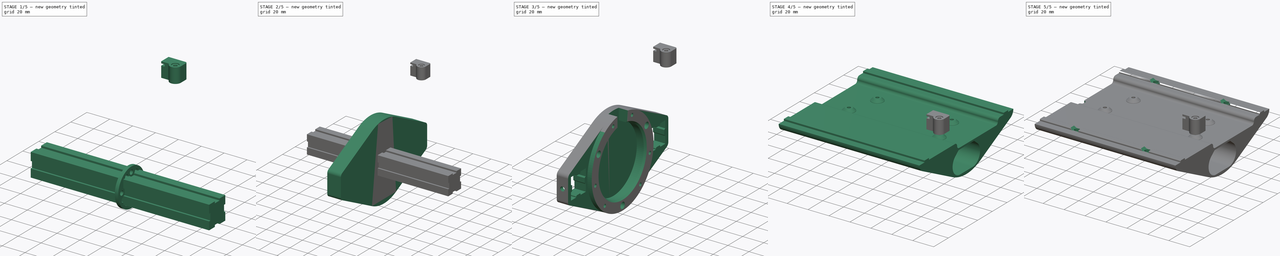
[diagram: build sequence overview — one tinted view per stage of 5, left to right]
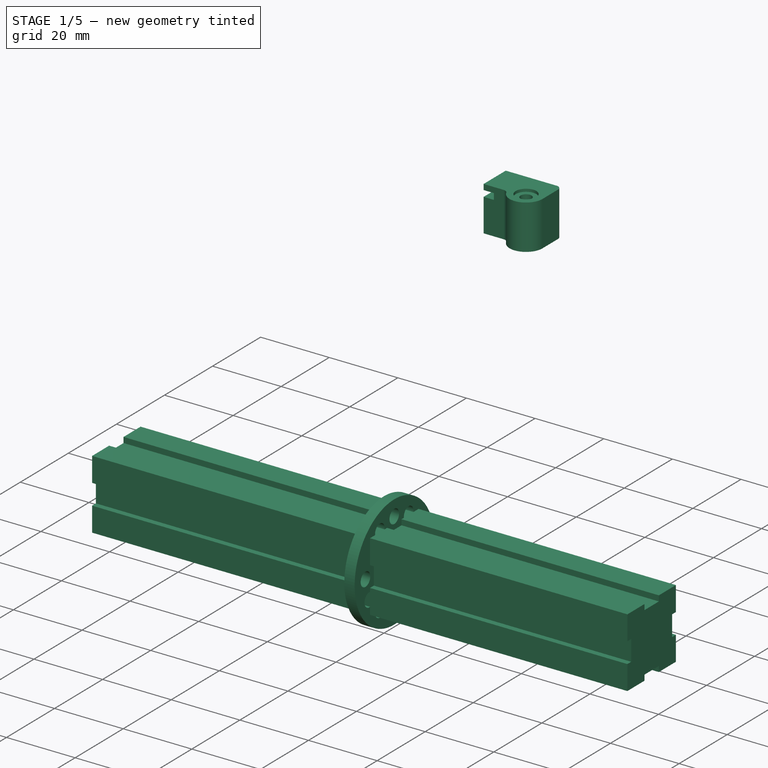
[diagram: stage 1 of 5 — iso view after this stage's code; geometry added in this stage tinted green]
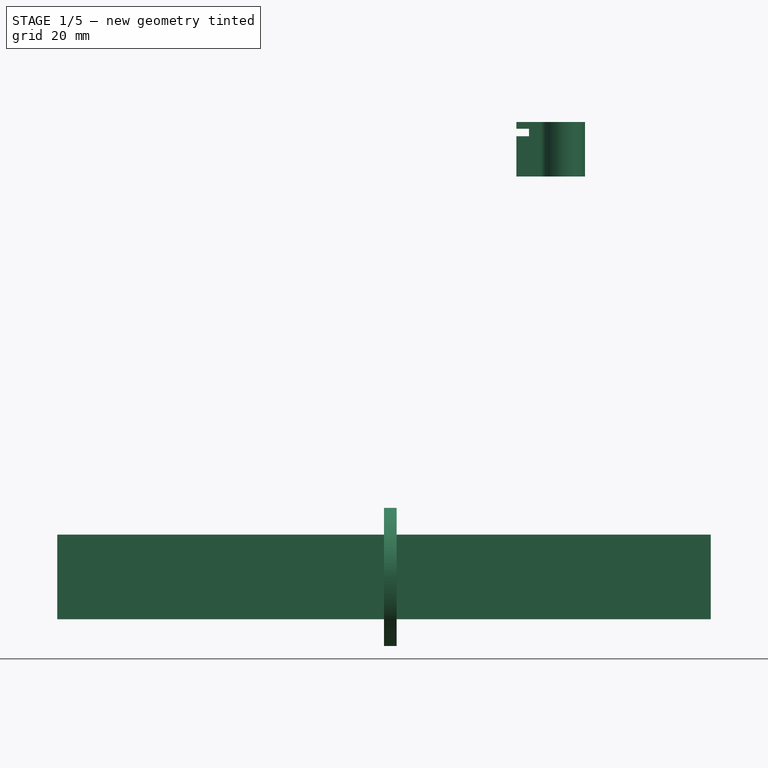
[diagram: stage 1 of 5 — front view after this stage's code; geometry added in this stage tinted green]
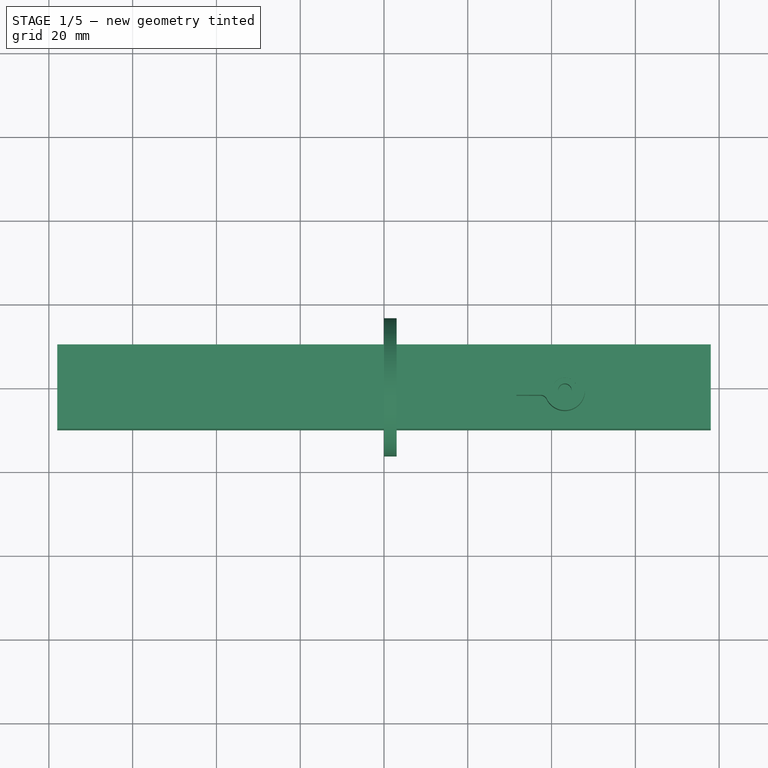
[diagram: stage 1 of 5 — top view after this stage's code; geometry added in this stage tinted green]
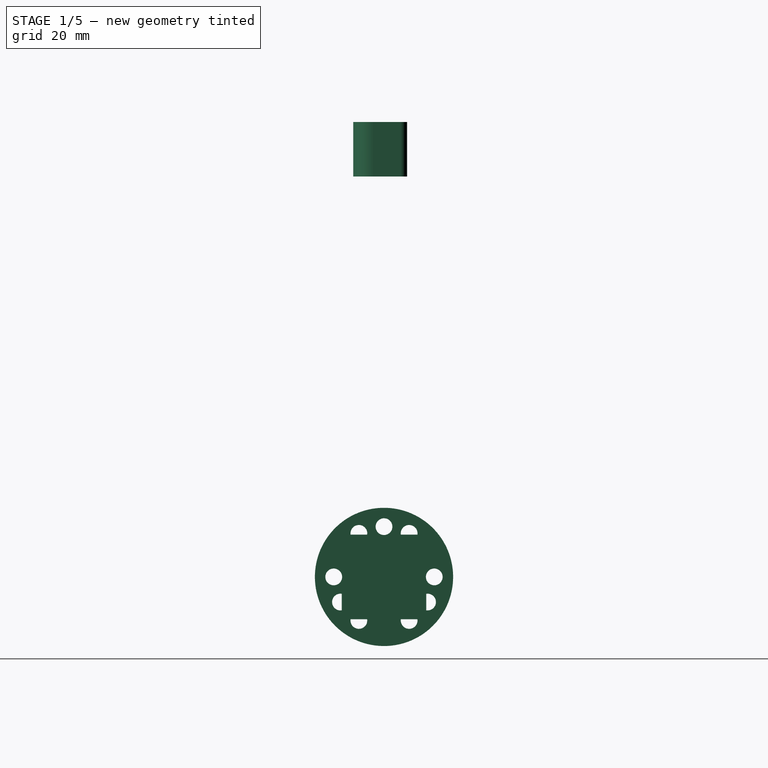
[diagram: stage 1 of 5 — right view after this stage's code; geometry added in this stage tinted green]
FCSTD DOCUMENT  (FreeCAD 1.0R39109 (Git))
Label: v13_gyro
License: All rights reserved
LicenseURL: https://en.wikipedia.org/wiki/All_rights_reserved
objects: Sketcher::SketchObject×24, PartDesign::Pad×12, PartDesign::Pocket×12, PartDesign::Body×7, PartDesign::SubShapeBinder×6, PartDesign::Hole×4, PartDesign::Chamfer×4, App::Part×2, App::FeaturePython×1, PartDesign::PolarPattern×1, Part::Feature×1, PartDesign::FeatureBase×1, PartDesign::Mirrored×1, PartDesign::Fillet×1
note: 167 computed .brp shape members not serialized (recipe doc carries the construction recipe); baked Part::Feature solids carry a one-line shape summary decoded from their .brp

FEATURE [App::FeaturePython] dd  # WARN: FeaturePython — macro-defined, semantics opaque (R4)
  CG_X = 107.2
  CG_Z = 107
  DynamicData = Created with DynamicData (v2.74) workbench. | This is a simple container object built | for holding custom properties.
  P20_Len = 156
  P20_Y = 54
  expr: P20_Len = (CG_X - 29.2 mm) * 2
FEATURE [Sketcher::SketchObject] Sketch009  label="CG_Sketch000"
  ArcFitTolerance = 1e-06
  AttachmentSupport = -> [YZ_Plane006]
  FullyConstrained = true
  MakeInternals = false
  MapMode = 5
  Placement = pos=(0,0,0) rot=(0.57735,0.57735,0.57735;2.0944rad)
  sketch-geometry (23):
    g0: LineSegment [constr] StartX=10.3923 StartY=-6 StartZ=0 EndX=12 EndY=-9e-16 EndZ=0
    g1: LineSegment [constr] StartX=12 StartY=-9e-16 StartZ=0 EndX=10.3923 EndY=6 EndZ=0
    g2: LineSegment [constr] StartX=10.3923 StartY=6 StartZ=0 EndX=6 EndY=10.3923 EndZ=0
    g3: LineSegment [constr] StartX=6 StartY=10.3923 StartZ=0 EndX=0 EndY=12 EndZ=0
    g4: LineSegment [constr] StartX=0 StartY=12 StartZ=0 EndX=-6 EndY=10.3923 EndZ=0
    g5: LineSegment [constr] StartX=-6 StartY=10.3923 StartZ=0 EndX=-10.3923 EndY=6 EndZ=0
    g6: LineSegment [constr] StartX=-10.3923 StartY=6 StartZ=0 EndX=-12 EndY=-9e-16 EndZ=0
    g7: LineSegment [constr] StartX=-12 StartY=-1.1e-15 StartZ=0 EndX=-10.3923 EndY=-6 EndZ=0
    g8: LineSegment [constr] StartX=-10.3923 StartY=-6 StartZ=0 EndX=-6 EndY=-10.3923 EndZ=0
    g9: LineSegment [constr] StartX=-6 StartY=-10.3923 StartZ=0 EndX=0 EndY=-12 EndZ=0
    g10: LineSegment [constr] StartX=0 StartY=-12 StartZ=0 EndX=6 EndY=-10.3923 EndZ=0
    g11: LineSegment [constr] StartX=6 StartY=-10.3923 StartZ=0 EndX=10.3923 EndY=-6 EndZ=0
    g12: Circle [constr] CenterX=0 CenterY=0 CenterZ=0 NormalX=0 NormalY=0 NormalZ=1 AngleXU=0 Radius=12
    g13: Circle CenterX=0 CenterY=12 CenterZ=0 NormalX=0 NormalY=0 NormalZ=1 AngleXU=0 Radius=2
    g14: Circle CenterX=-6 CenterY=10.3923 CenterZ=0 NormalX=0 NormalY=0 NormalZ=1 AngleXU=0 Radius=2
    g15: Circle CenterX=6 CenterY=10.3923 CenterZ=0 NormalX=0 NormalY=0 NormalZ=1 AngleXU=0 Radius=2
    g16: Circle CenterX=12 CenterY=-9e-16 CenterZ=0 NormalX=0 NormalY=0 NormalZ=1 AngleXU=0 Radius=2
    g17: Circle CenterX=10.3923 CenterY=-6 CenterZ=0 NormalX=0 NormalY=0 NormalZ=1 AngleXU=0 Radius=2
    g18: Circle CenterX=6 CenterY=-10.3923 CenterZ=0 NormalX=0 NormalY=0 NormalZ=1 AngleXU=0 Radius=2
    g19: Circle CenterX=-6 CenterY=-10.3923 CenterZ=0 NormalX=0 NormalY=0 NormalZ=1 AngleXU=0 Radius=2
    g20: Circle CenterX=-10.3923 CenterY=-6 CenterZ=0 NormalX=0 NormalY=0 NormalZ=1 AngleXU=0 Radius=2
    g21: Circle CenterX=-12 CenterY=-1.1e-15 CenterZ=0 NormalX=0 NormalY=0 NormalZ=1 AngleXU=0 Radius=2
    g22: Circle CenterX=0 CenterY=0 CenterZ=0 NormalX=0 NormalY=0 NormalZ=1 AngleXU=0 Radius=16.5
  constraints (48):
    c: Coincident(g0,g1)
    c: Coincident(g1,g2)
    c: Coincident(g2,g3)
    c: Coincident(g3,g4)
    c: Coincident(g4,g5)
    c: Coincident(g5,g6)
    c: Coincident(g6,g7)
    c: Coincident(g7,g8)
    c: Coincident(g8,g9)
    c: Coincident(g9,g10)
    c: Coincident(g10,g11)
    c: Coincident(g11,g0)
    c: Equal(g0, g1-g11) x11
    c: PointOnObject(g0,g12)
    c: PointOnObject(g1,g12)
    c: PointOnObject(g2,g12)
    c: PointOnObject(g3,g12)
    c: PointOnObject(g4,g12)
    c: PointOnObject(g5,g12)
    c: PointOnObject(g6,g12)
    c: PointOnObject(g7,g12)
    c: PointOnObject(g8,g12)
    c: PointOnObject(g9,g12)
    c: PointOnObject(g10,g12)
    c: PointOnObject(g11,g12)
    c: Diameter(g12) = 24
    c: PointOnObject(g3,g-2)
    c: Coincident(g13,g3)
    c: Coincident(g14,g4)
    c: Coincident(g15,g2)
    c: Coincident(g16,g0)
    c: Coincident(g17,g0)
    c: Coincident(g18,g10)
    c: Coincident(g19,g8)
    c: Coincident(g20,g7)
    c: Coincident(g21,g6)
    c: Equal(g21,g14)
    c: Equal(g14,g13)
    c: Equal(g13,g15)
    c: Equal(g15,g16)
    c: Equal(g16,g17)
    c: Equal(g17,g18)
    c: Equal(g18,g19)
    c: Equal(g19,g20)
    c: Diameter(g17) = 4
    c: Diameter(g22) = 33
    c: Coincident(g22,g12)
    c: Coincident(g12,g-1)
FEATURE [PartDesign::Pad] Pad006  label="CG_Pad000"
  Direction = (1,0,0)
  Length = 3
  Length2 = 10
  Placement = pos=(0,0,0) rot=(1,1,1;2.0944rad)
  Profile = -> Sketch009
  ReferenceAxis = -> Sketch009 [N_Axis]
  Refine = true
  Suppressed = false
  Type = 0
FEATURE [PartDesign::Body] Body004  label="CyberGearL"
  AllowCompound = false
  Group = -> [Sketch009,Pad006,Sketch010,Pad007,PolarPattern,Sketch011,Pad008,Sketch012,Pad009,Sketch013,Pad010,Sketch014,Pad011]
  Origin = -> Origin006
  Placement = pos=(107.2,0,107) rot=(0,0,1;0rad)
  Tip = -> Pad011
  expr: .Placement.Base.x = dd.CG_X
  expr: .Placement.Base.z = dd.CG_Z
FEATURE [Part::Feature] Body005  label="CyberGearR"
  Placement = pos=(-107.2,0,107) rot=(0,0,1;3.14159rad)
  shape: bbox 36.5 x 79.86 x 80.34 mm, 95 faces (baked)
  expr: .Placement.Base.x = -dd.CG_X
FEATURE [Sketcher::SketchObject] Sketch005  label="P20_Sketch001"
  ArcFitTolerance = 1e-06
  AttachmentSupport = -> [YZ_Plane007]
  FullyConstrained = true
  MakeInternals = false
  MapMode = 5
  Placement = pos=(0,0,0) rot=(0.57735,0.57735,0.57735;2.0944rad)
  sketch-geometry (20):
    g0: LineSegment StartX=3 StartY=10.1 StartZ=0 EndX=10.1 EndY=10.1 EndZ=0
    g1: LineSegment StartX=10.1 StartY=10.1 StartZ=0 EndX=10.1 EndY=3 EndZ=0
    g2: LineSegment StartX=10.1 StartY=3 StartZ=0 EndX=8.5 EndY=3 EndZ=0
    g3: LineSegment StartX=8.5 StartY=3 StartZ=0 EndX=8.5 EndY=-3 EndZ=0
    g4: LineSegment StartX=8.5 StartY=-3 StartZ=0 EndX=10.1 EndY=-3 EndZ=0
    g5: LineSegment StartX=10.1 StartY=-3 StartZ=0 EndX=10.1 EndY=-10.1 EndZ=0
    g6: LineSegment StartX=10.1 StartY=-10.1 StartZ=0 EndX=3 EndY=-10.1 EndZ=0
    g7: LineSegment StartX=3 StartY=-10.1 StartZ=0 EndX=3 EndY=-8.5 EndZ=0
    g8: LineSegment StartX=3 StartY=-8.5 StartZ=0 EndX=-3 EndY=-8.5 EndZ=0
    g9: LineSegment StartX=-3 StartY=-8.5 StartZ=0 EndX=-3 EndY=-10.1 EndZ=0
    g10: LineSegment StartX=-3 StartY=-10.1 StartZ=0 EndX=-10.1 EndY=-10.1 EndZ=0
    g11: LineSegment StartX=-10.1 StartY=-10.1 StartZ=0 EndX=-10.1 EndY=-3 EndZ=0
    g12: LineSegment StartX=-10.1 StartY=-3 StartZ=0 EndX=-8.5 EndY=-3 EndZ=0
    g13: LineSegment StartX=-8.5 StartY=-3 StartZ=0 EndX=-8.5 EndY=3 EndZ=0
    g14: LineSegment StartX=-8.5 StartY=3 StartZ=0 EndX=-10.1 EndY=3 EndZ=0
    g15: LineSegment StartX=-10.1 StartY=3 StartZ=0 EndX=-10.1 EndY=10.1 EndZ=0
    g16: LineSegment StartX=-10.1 StartY=10.1 StartZ=0 EndX=-3 EndY=10.1 EndZ=0
    g17: LineSegment StartX=-3 StartY=10.1 StartZ=0 EndX=-3 EndY=8.5 EndZ=0
    g18: LineSegment StartX=-3 StartY=8.5 StartZ=0 EndX=3 EndY=8.5 EndZ=0
    g19: LineSegment StartX=3 StartY=8.5 StartZ=0 EndX=3 EndY=10.1 EndZ=0
  constraints (58):
    c: Horizontal(g0)
    c: Coincident(g0,g1)
    c: Coincident(g1,g2)
    c: Horizontal(g2)
    c: Coincident(g2,g3)
    c: Coincident(g3,g4)
    c: Coincident(g4,g5)
    c: Vertical(g5)
    c: Coincident(g5,g6)
    c: Coincident(g6,g7)
    c: Coincident(g7,g8)
    c: Horizontal(g8)
    c: Coincident(g8,g9)
    c: Vertical(g9)
    c: Coincident(g9,g10)
    c: Coincident(g10,g11)
    c: Vertical(g11)
    c: Coincident(g11,g12)
    c: Horizontal(g12)
    c: Coincident(g12,g13)
    c: Coincident(g13,g14)
    c: Coincident(g14,g15)
    c: Vertical(g15)
    c: Coincident(g15,g16)
    c: Horizontal(g16)
    c: Coincident(g16,g17)
    c: Vertical(g17)
    c: Coincident(g17,g18)
    c: Coincident(g18,g19)
    c: Coincident(g19,g0)
    c: Horizontal(g14)
    c: Vertical(g19)
    c: Vertical(g1)
    c: Horizontal(g4)
    c: Horizontal(g6)
    c: Vertical(g7)
    c: Horizontal(g10)
    c: Equal(g14,g17)
    c: Equal(g19,g2)
    c: Equal(g4,g7)
    c: Distance(g4,g4) = 1.6
    c: Equal(g3,g18)
    c: Equal(g18,g13)
    c: Equal(g13,g8)
    c: Distance(g13,g13) = 6
    c: Equal(g16,g0)
    c: Equal(g0,g1)
    c: Equal(g1,g5)
    c: Equal(g5,g6)
    c: Equal(g6,g10)
    c: Equal(g10,g11)
    c: Equal(g11,g15)
    c: Vertical(g3)
    c: Vertical(g13)
    c: DistanceY(g10,g15) = 20.2
    c: Symmetric(g14,g11,g-1)
    c: Symmetric(g17,g18,g-2)
    c: Equal(g9,g7)
FEATURE [PartDesign::Pad] Pad  label="P20_Pad000"
  Direction = (1,0,0)
  Length = 156
  Length2 = 10
  Midplane = true
  Placement = pos=(0,0,0) rot=(1,1,1;2.0944rad)
  Profile = -> Sketch005
  ReferenceAxis = -> Sketch005 [N_Axis]
  Refine = true
  Suppressed = false
  Type = 0
  expr: Length = dd.P20_Len
FEATURE [PartDesign::FeatureBase] Clone
  BaseFeature = -> Body
  Suppressed = false
FEATURE [PartDesign::Body] Body007  label="Side"
  AllowCompound = false
  Group = -> [Binder,Sketch,Pad012,Pocket,Sketch015,Pocket001,Sketch016,Pocket002,Sketch017,Hole,Sketch018,Sketch019,Chamfer,Chamfer001,Hole001,Pocket003,Binder002,Mirrored]
  Origin = -> Origin008
  Placement = pos=(82.2,0,107) rot=(0,0,1;0rad)
  Tip = -> Mirrored
  expr: .Placement.Base.x = dd.CG_X - 25 mm
  expr: .Placement.Base.z = dd.CG_Z
FEATURE [PartDesign::SubShapeBinder] Binder003  label="M_Binder003_S"
  BindCopyOnChange = 0
  BindMode = 0
  ClaimChildren = false
  Context = -> Part001 [Body009.Binder003.]
  Fuse = false
  MakeFace = true
  OffsetFill = false
  OffsetIntersection = false
  OffsetJoinType = 0
  OffsetOpenResult = false
  PartialLoad = false
  Refine = true
  Relative = true
  Support = -> [Body007[Mirrored.Face36]]
  _Version = 2
FEATURE [PartDesign::SubShapeBinder] Binder004  label="M_Binder004_P20"
  BindCopyOnChange = 0
  BindMode = 0
  ClaimChildren = false
  Context = -> Part001 [Body009.Binder004.]
  Fuse = false
  MakeFace = true
  OffsetFill = false
  OffsetIntersection = false
  OffsetJoinType = 0
  OffsetOpenResult = false
  PartialLoad = false
  Refine = true
  Relative = true
  Support = -> [Body[Pad.Face21],Body008[Clone.Face21]]
  _Version = 2
FEATURE [Sketcher::SketchObject] Sketch021  label="P_Sketch021"
  ArcFitTolerance = 1e-06
  AttachmentOffset = pos=(0,0,94) rot=(0,0,1;0rad)
  AttachmentSupport = -> [XY_Plane011]
  FullyConstrained = true
  MakeInternals = false
  MapMode = 5
  Placement = pos=(0,0,94) rot=(0,0,1;0rad)
  expr: .AttachmentOffset.Base.z = dd.CG_Z - 13 mm
  sketch-geometry (9):
    g0: LineSegment StartX=-50 StartY=40.44 StartZ=0 EndX=-50 EndY=-9.96 EndZ=0
    g1: LineSegment StartX=-50 StartY=-9.96 StartZ=0 EndX=50 EndY=-9.96 EndZ=0
    g2: LineSegment StartX=50 StartY=-9.96 StartZ=0 EndX=50 EndY=40.44 EndZ=0
    g3: LineSegment StartX=50 StartY=40.44 StartZ=0 EndX=-50 EndY=40.44 EndZ=0
    g4: Circle CenterX=-43.18 CenterY=-2.54 CenterZ=0 NormalX=0 NormalY=0 NormalZ=1 AngleXU=0 Radius=1.6
    g5: Circle CenterX=43.18 CenterY=-2.54 CenterZ=0 NormalX=0 NormalY=0 NormalZ=1 AngleXU=0 Radius=1.6
    g6: Circle CenterX=-35.56 CenterY=25.4 CenterZ=0 NormalX=0 NormalY=0 NormalZ=1 AngleXU=0 Radius=1.6
    g7: Circle CenterX=35.56 CenterY=25.4 CenterZ=0 NormalX=0 NormalY=0 NormalZ=1 AngleXU=0 Radius=1.6
    g8: LineSegment [constr] StartX=-50 StartY=15.24 StartZ=0 EndX=50 EndY=15.24 EndZ=0
  constraints (23):
    c: Coincident(g0,g1)
    c: Coincident(g1,g2)
    c: Coincident(g2,g3)
    c: Coincident(g3,g0)
    c: Vertical(g0)
    c: Vertical(g2)
    c: Horizontal(g1)
    c: Symmetric(g2,g0,g-2)
    c: DistanceX(g3,g3) = 100
    c: DistanceY(g0,g0) = 50.4
    c: Symmetric(g5,g4,g-2)
    c: Symmetric(g7,g6,g-2)
    c: DistanceX(g4,g5) = 86.36
    c: DistanceX(g6,g7) = 71.12
    c: Symmetric(g0,g0,g8)
    c: Symmetric(g2,g2,g8)
    c: Equal(g4,g5)
    c: Equal(g5,g7)
    c: Equal(g7,g6)
    c: Diameter(g6) = 3.2
    c: Distance(g5,g-1) = 2.54
    c: Distance(g8,g-1) = 15.24
    c: DistanceY(g8,g7) = 10.16
FEATURE [PartDesign::Pad] Pad014  label="P_Pad014"
  Direction = (0,0,1)
  Length = 1.6
  Length2 = 10
  Profile = -> Sketch021
  ReferenceAxis = -> Sketch021 [N_Axis]
  Refine = true
  Suppressed = false
  Type = 0
FEATURE [PartDesign::Body] Body009  label="Mid"
  AllowCompound = false
  Group = -> [Binder003,Binder004,Sketch020,Pad013,Binder005,Sketch022,Pad015,Chamfer002,Pocket004,Pocket005,Sketch023,Pocket006,Sketch024,Pocket007,Sketch025,Sketch026,Pocket008,Sketch027,Hole002,Hole003,Pocket009,Chamfer003,Fillet]
  Origin = -> Origin010
  Tip = -> Fillet
FEATURE [PartDesign::SubShapeBinder] Binder006  label="SH_Binder006_P"
  BindCopyOnChange = 0
  BindMode = 0
  ClaimChildren = false
  Context = -> Part001 [Body011.Binder006.]
  Fuse = false
  MakeFace = true
  OffsetFill = false
  OffsetIntersection = false
  OffsetJoinType = 0
  OffsetOpenResult = false
  PartialLoad = false
  Refine = true
  Relative = true
  Support = -> [Part[Body010.Pad014.Face10]]
  _Version = 2
FEATURE [Sketcher::SketchObject] Sketch028  label="SH_Sketch028"
  ArcFitTolerance = 1e-06
  AttachmentSupport = -> [Binder006]
  ExternalGeometry = -> [Binder006]
  FullyConstrained = true
  MakeInternals = false
  MapMode = 5
  Placement = pos=(0,0,95.6) rot=(0,0,1;0rad)
  sketch-geometry (13):
    g0: Circle CenterX=43.18 CenterY=-2.54 CenterZ=0 NormalX=0 NormalY=0 NormalZ=1 AngleXU=0 Radius=1.6
    g1: ArcOfCircle CenterX=43.18 CenterY=-2.54 CenterZ=0 NormalX=0 NormalY=0 NormalZ=1 AngleXU=0 Radius=4.8 StartAngle=3.58401 EndAngle=6.28319
    g2: ArcOfCircle CenterX=37.3962 CenterY=-5.28 CenterZ=0 NormalX=0 NormalY=0 NormalZ=1 AngleXU=0 Radius=1.6 StartAngle=0.442417 EndAngle=1.5708
    g3: LineSegment [constr] StartX=-36.83 StartY=-3.68 StartZ=0 EndX=-36.83 EndY=-6.48 EndZ=0
    g4: LineSegment [constr] StartX=-36.83 StartY=-6.48 StartZ=0 EndX=29.21 EndY=-6.48 EndZ=0
    g5: LineSegment [constr] StartX=29.21 StartY=-6.48 StartZ=0 EndX=29.21 EndY=-3.68 EndZ=0
    g6: LineSegment [constr] StartX=29.21 StartY=-3.68 StartZ=0 EndX=-36.83 EndY=-3.68 EndZ=0
    g7: LineSegment [constr] StartX=29.21 StartY=-5.08 StartZ=0 EndX=-36.83 EndY=-5.08 EndZ=0
    g8: LineSegment StartX=37.3962 StartY=-3.68 StartZ=0 EndX=31.61 EndY=-3.68 EndZ=0
    g9: LineSegment StartX=31.61 StartY=-3.68 StartZ=0 EndX=31.61 EndY=5.52 EndZ=0
    g10: LineSegment StartX=31.61 StartY=5.52 StartZ=0 EndX=46.38 EndY=5.52 EndZ=0
    g11: LineSegment StartX=47.98 StartY=3.92 StartZ=0 EndX=47.98 EndY=-2.54 EndZ=0
    g12: ArcOfCircle CenterX=46.38 CenterY=3.92 CenterZ=0 NormalX=0 NormalY=0 NormalZ=1 AngleXU=0 Radius=1.6 StartAngle=0 EndAngle=1.5708
  constraints (34):
    c: Coincident(g0,g-3)
    c: Equal(g0,g-3)
    c: Coincident(g1,g0)
    c: Tangent(g2,g1) = 1.5708
    c: Radius(g1) = 4.8
    c: Coincident(g3,g4)
    c: Coincident(g4,g5)
    c: Coincident(g5,g6)
    c: Coincident(g6,g3)
    c: Vertical(g3)
    c: Vertical(g5)
    c: Horizontal(g4)
    c: Horizontal(g6)
    c: Symmetric(g5,g5,g7)
    c: Symmetric(g3,g3,g7)
    c: DistanceY(g7,g0) = 2.54
    c: Distance(g3,g3) = 2.8
    c: DistanceX(g-4,g3) = 6.35
    c: DistanceX(g4,g0) = 13.97
    c: Horizontal(g8)
    c: Coincident(g8,g9)
    c: Vertical(g9)
    c: Coincident(g9,g10)
    c: Horizontal(g10)
    c: Tangent(g2,g8) = -1.5708
    c: Vertical(g11)
    c: Tangent(g10,g12) = 1.5708
    c: Tangent(g11,g12) = 1.5708
    c: Tangent(g11,g1) = 1.5708
    c: PointOnObject(g5,g8)
    c: Equal(g12,g2)
    c: Radius(g12) = 1.6
    c: DistanceY(g4,g9) = 12
    c: Distance(g5,g8) = 2.4
FEATURE [PartDesign::Pad] Pad016  label="SH_Pad016"
  Direction = (0,0,1)
  Length = 13
  Length2 = 10
  Profile = -> Sketch028
  ReferenceAxis = -> Sketch028 [N_Axis]
  Refine = true
  Suppressed = false
  Type = 0
FEATURE [Sketcher::SketchObject] Sketch029  label="SH_Sketch029"
  ArcFitTolerance = 1e-06
  AttachmentSupport = -> [Pad016]
  ExternalGeometry = -> [Pad016]
  FullyConstrained = true
  MakeInternals = false
  MapMode = 5
  Placement = pos=(0,5.52,0) rot=(0,0.707107,0.707107;3.14159rad)
  sketch-geometry (4):
    g0: LineSegment StartX=-31.61 StartY=107 StartZ=0 EndX=-34.61 EndY=107 EndZ=0
    g1: LineSegment StartX=-34.61 StartY=107 StartZ=0 EndX=-34.61 EndY=105.2 EndZ=0
    g2: LineSegment StartX=-34.61 StartY=105.2 StartZ=0 EndX=-31.61 EndY=105.2 EndZ=0
    g3: LineSegment StartX=-31.61 StartY=105.2 StartZ=0 EndX=-31.61 EndY=107 EndZ=0
  constraints (12):
    c: Coincident(g0,g1)
    c: Coincident(g1,g2)
    c: Coincident(g2,g3)
    c: Coincident(g3,g0)
    c: Horizontal(g0)
    c: Horizontal(g2)
    c: Vertical(g1)
    c: Vertical(g3)
    c: PointOnObject(g0,g-3)
    c: Distance(g3,g3) = 1.8
    c: Distance(g0,g-3) = 1.6
    c: Distance(g2,g2) = 3
FEATURE [PartDesign::Pocket] Pocket010  label="SH_Pocket010"
  BaseFeature = -> Pad016
  Direction = (0,-1,2e-16)
  Length = 5
  Length2 = 5
  Profile = -> Sketch029
  ReferenceAxis = -> Sketch029 [N_Axis]
  Refine = true
  Suppressed = false
  Type = 1
FEATURE [Sketcher::SketchObject] Sketch030  label="SH_Sketch030"
  ArcFitTolerance = 1e-06
  AttachmentSupport = -> [Pocket010]
  ExternalGeometry = -> [Pocket010]
  FullyConstrained = true
  MakeInternals = false
  MapMode = 5
  Placement = pos=(0,0,108.6) rot=(0,0,1;0rad)
  sketch-geometry (1):
    g0: Circle CenterX=43.18 CenterY=-2.54 CenterZ=0 NormalX=0 NormalY=0 NormalZ=1 AngleXU=0 Radius=3
  constraints (2):
    c: Coincident(g0,g-3)
    c: Diameter(g0) = 6
FEATURE [PartDesign::Pocket] Pocket011  label="SH_Pocket011"
  BaseFeature = -> Pocket010
  Direction = (0,0,-1)
  Length = 0.8
  Length2 = 5
  Profile = -> Sketch030
  ReferenceAxis = -> Sketch030 [N_Axis]
  Refine = true
  Suppressed = false
  Type = 0
FEATURE [PartDesign::Body] Body011  label="SensH"
  AllowCompound = false
  Group = -> [Binder006,Sketch028,Pad016,Sketch029,Pocket010,Sketch030,Pocket011]
  Origin = -> Origin012
  Tip = -> Pocket011
FEATURE [App::Part] Part001  label="Frame0"
  Group = -> [Body004,Body005,Body,Body007,Body008,Body009,Body011]
  Origin = -> Origin001
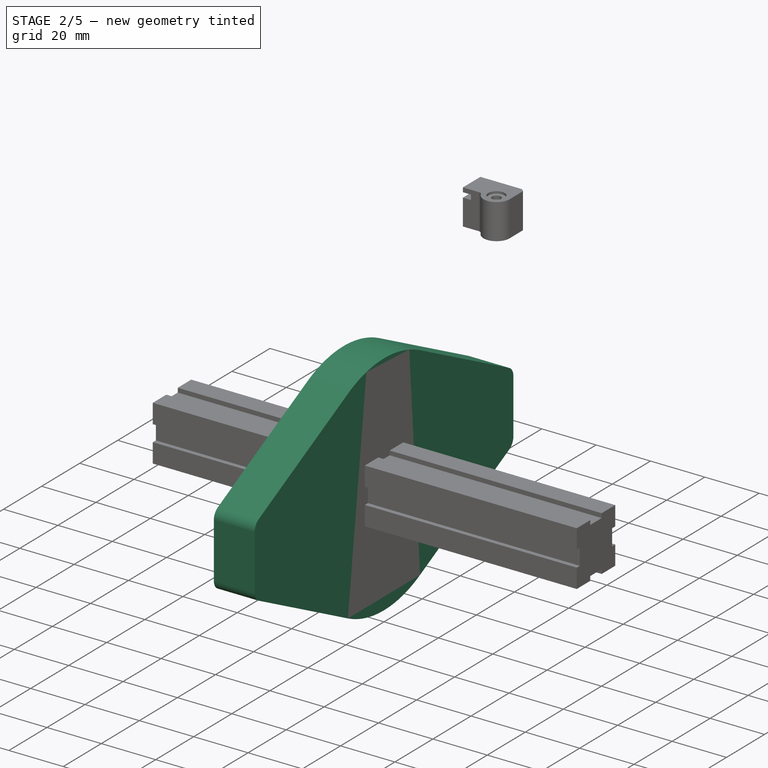
[diagram: stage 2 of 5 — iso view after this stage's code; geometry added in this stage tinted green]
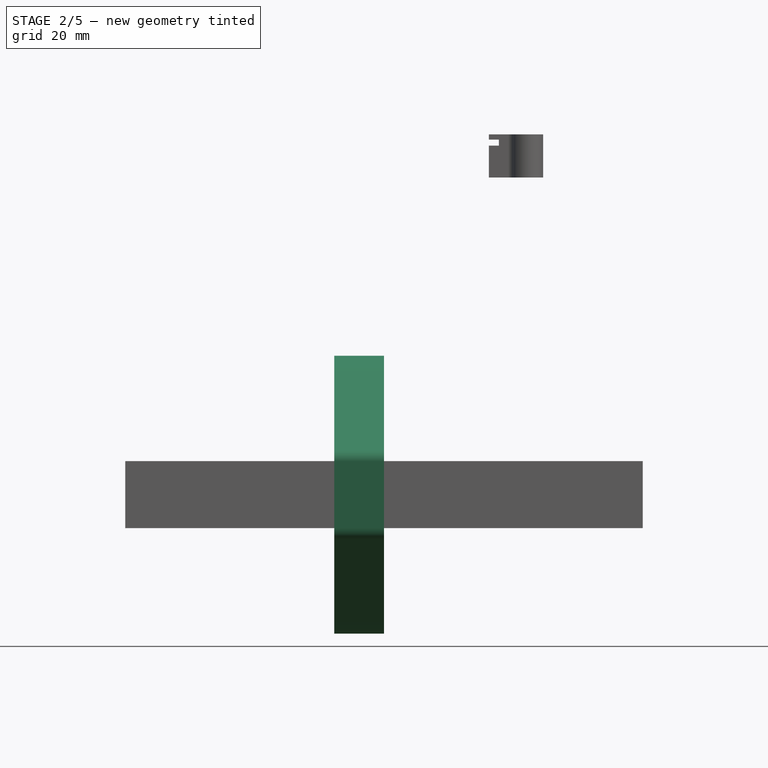
[diagram: stage 2 of 5 — front view after this stage's code; geometry added in this stage tinted green]
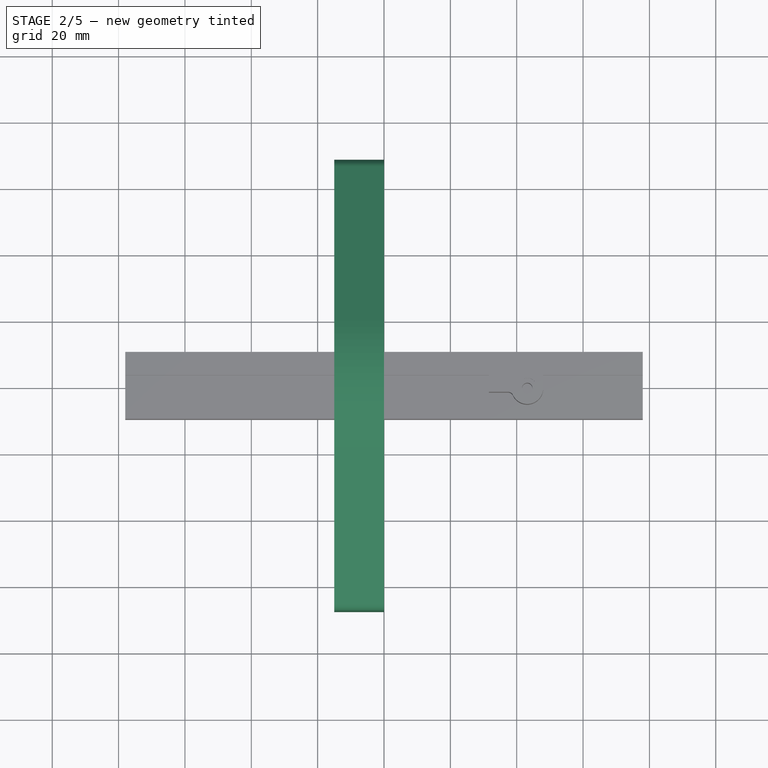
[diagram: stage 2 of 5 — top view after this stage's code; geometry added in this stage tinted green]
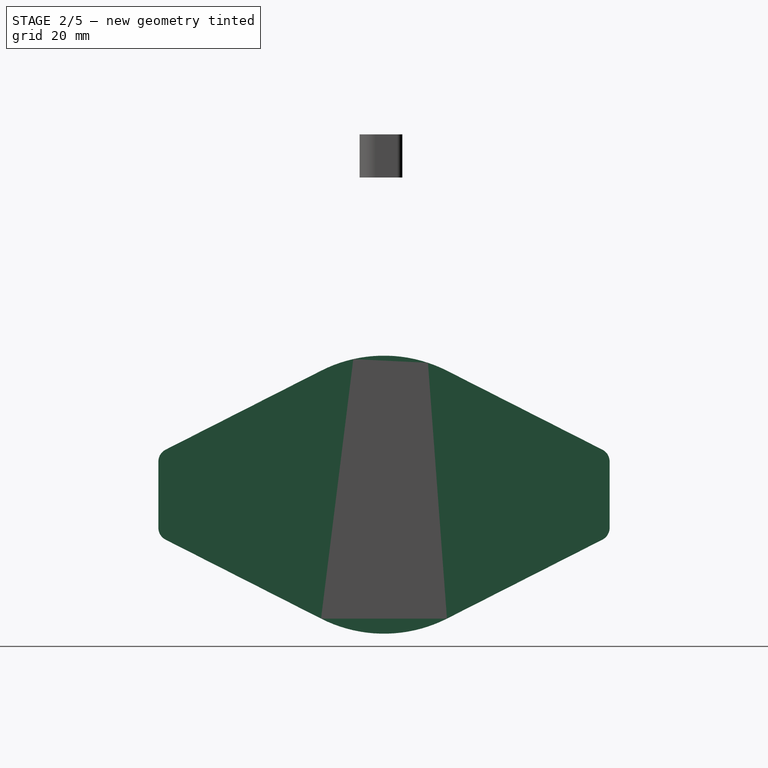
[diagram: stage 2 of 5 — right view after this stage's code; geometry added in this stage tinted green]
FEATURE [Sketcher::SketchObject] Sketch010  label="CG_Sketch001"
  ArcFitTolerance = 1e-06
  AttachmentSupport = -> [YZ_Plane006]
  FullyConstrained = true
  MakeInternals = false
  MapMode = 5
  Placement = pos=(0,0,0) rot=(0.57735,0.57735,0.57735;2.0944rad)
  sketch-geometry (5):
    g0: ArcOfCircle CenterX=0 CenterY=0 CenterZ=0 NormalX=0 NormalY=0 NormalZ=1 AngleXU=0 Radius=35.5 StartAngle=4.86825 EndAngle=10.8397
    g1: ArcOfCircle CenterX=0 CenterY=-37.5 CenterZ=0 NormalX=0 NormalY=0 NormalZ=1 AngleXU=0 Radius=3 StartAngle=3.2306 EndAngle=6.19418
    g2: ArcOfCircle CenterX=-5.97625 CenterY=-38.0333 CenterZ=0 NormalX=0 NormalY=0 NormalZ=1 AngleXU=0 Radius=3 StartAngle=0.0890064 EndAngle=1.41494
    g3: ArcOfCircle CenterX=5.97625 CenterY=-38.0333 CenterZ=0 NormalX=0 NormalY=0 NormalZ=1 AngleXU=0 Radius=3 StartAngle=1.72665 EndAngle=3.05259
    g4: Circle CenterX=0 CenterY=-37.5 CenterZ=0 NormalX=0 NormalY=0 NormalZ=1 AngleXU=0 Radius=1.5
  constraints (13):
    c: Coincident(g0,g-1)
    c: Radius(g0) = 35.5
    c: PointOnObject(g1,g-2)
    c: Distance(g1,g-1) = 37.5
    c: Radius(g1) = 3
    c: Tangent(g3,g1) = 1.5708
    c: Tangent(g3,g0) = 1.5708
    c: Tangent(g2,g1) = 1.5708
    c: Tangent(g2,g0) = 1.5708
    c: Equal(g3,g2)
    c: Equal(g2,g1)
    c: Coincident(g4,g1)
    c: Diameter(g4) = 3
FEATURE [PartDesign::Pad] Pad007  label="CG_Pad001"
  BaseFeature = -> Pad006
  Direction = (1,0,0)
  Length = 25
  Length2 = 10
  Placement = pos=(0,0,0) rot=(1,1,1;2.0944rad)
  Profile = -> Sketch010
  ReferenceAxis = -> Sketch010 [N_Axis]
  Refine = true
  Reversed = true
  Suppressed = false
  Type = 0
FEATURE [PartDesign::PolarPattern] PolarPattern  label="CG_PolarPattern000"
  Angle = 360
  Axis = -> Sketch010 [N_Axis]
  BaseFeature = -> Pad007
  Mode = 0
  Occurrences = 9
  Offset = 120
  Originals = -> [Pad007]
  Placement = pos=(0,0,0) rot=(1,1,1;2.0944rad)
  Refine = true
  Suppressed = false
  TransformMode = 0
FEATURE [Sketcher::SketchObject] Sketch011  label="CG_Sketch002"
  ArcFitTolerance = 1e-06
  AttachmentSupport = -> [YZ_Plane006]
  ExternalGeometry = -> [PolarPattern]
  FullyConstrained = true
  MakeInternals = false
  MapMode = 5
  Placement = pos=(0,0,0) rot=(0.57735,0.57735,0.57735;2.0944rad)
  sketch-geometry (8):
    g0: ArcOfCircle CenterX=-7 CenterY=36.8409 CenterZ=0 NormalX=0 NormalY=0 NormalZ=1 AngleXU=0 Radius=2 StartAngle=4.90016 EndAngle=6.28319
    g1: ArcOfCircle CenterX=-3 CenterY=37.8409 CenterZ=0 NormalX=0 NormalY=0 NormalZ=1 AngleXU=0 Radius=2 StartAngle=1.5708 EndAngle=3.14159
    g2: ArcOfCircle CenterX=3 CenterY=37.8409 CenterZ=0 NormalX=0 NormalY=0 NormalZ=1 AngleXU=0 Radius=2 StartAngle=-1.92726e-11 EndAngle=1.5708
    g3: ArcOfCircle CenterX=7 CenterY=36.8409 CenterZ=0 NormalX=0 NormalY=0 NormalZ=1 AngleXU=0 Radius=2 StartAngle=3.14159 EndAngle=4.52462
    g4: LineSegment StartX=-5 StartY=37.8409 StartZ=0 EndX=-5 EndY=36.8409 EndZ=0
    g5: LineSegment StartX=-3 StartY=39.8409 StartZ=0 EndX=3 EndY=39.8409 EndZ=0
    g6: LineSegment StartX=5 StartY=37.8409 StartZ=0 EndX=5 EndY=36.8409 EndZ=0
    g7: ArcOfCircle CenterX=0 CenterY=0 CenterZ=0 NormalX=0 NormalY=0 NormalZ=1 AngleXU=0 Radius=35.5 StartAngle=1.38303 EndAngle=1.75856
  constraints (18):
    c: Symmetric(g0,g3,g-2)
    c: Symmetric(g1,g2,g-2)
    c: Equal(g2,g1)
    c: Equal(g1,g0)
    c: Vertical(g4)
    c: Tangent(g1,g5) = 1.5708
    c: Tangent(g2,g5) = 1.5708
    c: Tangent(g6,g2) = 1.5708
    c: Tangent(g4,g1) = -1.5708
    c: Distance(g1,g2) = 10
    c: Tangent(g0,g4) = 1.5708
    c: Tangent(g3,g6) = -1.5708
    c: Coincident(g7,g-1)
    c: Tangent(g7,g3) = 1.5708
    c: Tangent(g0,g7) = 1.5708
    c: Radius(g3) = 2
    c: DistanceY(g0,g1) = 3
    c: PointOnObject(g3,g-3)
FEATURE [PartDesign::Pad] Pad008  label="CG_Pad002"
  BaseFeature = -> PolarPattern
  Direction = (1,0,0)
  Length = 25
  Length2 = 10
  Placement = pos=(0,0,0) rot=(1,1,1;2.0944rad)
  Profile = -> Sketch011
  ReferenceAxis = -> Sketch011 [N_Axis]
  Refine = true
  Reversed = true
  Suppressed = false
  Type = 0
  expr: Length = <<CG_Pad001>>.Length
FEATURE [Sketcher::SketchObject] Sketch012  label="CG_Sketch003"
  ArcFitTolerance = 1e-06
  AttachmentSupport = -> [YZ_Plane006]
  FullyConstrained = true
  MakeInternals = false
  MapMode = 5
  Placement = pos=(0,0,0) rot=(0.57735,0.57735,0.57735;2.0944rad)
  expr: Constraints[3] = 43 - 2.8 * 2
  sketch-geometry (3):
    g0: Circle CenterX=0 CenterY=0 CenterZ=0 NormalX=0 NormalY=0 NormalZ=1 AngleXU=0 Radius=18.7
    g1: Circle CenterX=0 CenterY=0 CenterZ=0 NormalX=0 NormalY=0 NormalZ=1 AngleXU=0 Radius=21.5
    g2: Circle CenterX=0 CenterY=29 CenterZ=0 NormalX=0 NormalY=0 NormalZ=1 AngleXU=0 Radius=2.1
  constraints (7):
    c: Coincident(g0,g-1)
    c: Coincident(g1,g0)
    c: Diameter(g1) = 43
    c: Diameter(g0) = 37.4
    c: PointOnObject(g2,g-2)
    c: Diameter(g2) = 4.2
    c: DistanceY(g0,g2) = 29
FEATURE [PartDesign::Pad] Pad009  label="CG_Pad003"
  BaseFeature = -> Pad008
  Direction = (1,0,0)
  Length = 2
  Length2 = 10
  Placement = pos=(0,0,0) rot=(1,1,1;2.0944rad)
  Profile = -> Sketch012
  ReferenceAxis = -> Sketch012 [N_Axis]
  Refine = true
  Suppressed = false
  Type = 0
FEATURE [Sketcher::SketchObject] Sketch013  label="CG_Sketch004"
  ArcFitTolerance = 1e-06
  AttachmentOffset = pos=(0,0,-25) rot=(0,0,1;0rad)
  AttachmentSupport = -> [YZ_Plane006]
  FullyConstrained = true
  MakeInternals = false
  MapMode = 5
  Placement = pos=(-25,0,0) rot=(0.57735,0.57735,0.57735;2.0944rad)
  expr: .AttachmentOffset.Base.z = -<<CG_Pad001>>.Length
  sketch-geometry (4):
    g0: ArcOfCircle CenterX=0 CenterY=0 CenterZ=0 NormalX=0 NormalY=0 NormalZ=1 AngleXU=0 Radius=31.5 StartAngle=1.79489 EndAngle=7.62989
    g1: LineSegment StartX=-7 StartY=30.7124 StartZ=0 EndX=-7 EndY=36.5 EndZ=0
    g2: LineSegment StartX=-7 StartY=36.5 StartZ=0 EndX=7 EndY=36.5 EndZ=0
    g3: LineSegment StartX=7 StartY=36.5 StartZ=0 EndX=7 EndY=30.7124 EndZ=0
  constraints (11):
    c: Coincident(g0,g-1)
    c: Radius(g0) = 31.5
    c: Coincident(g1,g2)
    c: Coincident(g2,g3)
    c: Vertical(g3)
    c: Symmetric(g1,g2,g-2)
    c: Vertical(g1)
    c: Coincident(g0,g1)
    c: Coincident(g3,g0)
    c: Distance(g2,g2) = 14
    c: Distance(g1,g-1) = 36.5
FEATURE [PartDesign::Pad] Pad010  label="CG_Pad004"
  BaseFeature = -> Pad009
  Direction = (1,0,0)
  Length = 8.5
  Length2 = 10
  Placement = pos=(0,0,0) rot=(1,1,1;2.0944rad)
  Profile = -> Sketch013
  ReferenceAxis = -> Sketch013 [N_Axis]
  Refine = true
  Reversed = true
  Suppressed = false
  Type = 0
FEATURE [Sketcher::SketchObject] Sketch014  label="CG_Sketch005"
  ArcFitTolerance = 1e-06
  AttachmentOffset = pos=(0,0,-25) rot=(0,0,1;0rad)
  AttachmentSupport = -> [YZ_Plane006]
  ExternalGeometry = -> [Pad010]
  FullyConstrained = true
  MakeInternals = false
  MapMode = 5
  Placement = pos=(-25,0,0) rot=(0.57735,0.57735,0.57735;2.0944rad)
  expr: .AttachmentOffset.Base.z = -<<CG_Pad001>>.Length
  sketch-geometry (3):
    g0: Circle CenterX=0 CenterY=0 CenterZ=0 NormalX=0 NormalY=0 NormalZ=1 AngleXU=0 Radius=2.8
    g1: Circle CenterX=-1.78e-14 CenterY=-37.5 CenterZ=0 NormalX=0 NormalY=0 NormalZ=1 AngleXU=0 Radius=2.8
    g2: Circle CenterX=-32.476 CenterY=18.75 CenterZ=0 NormalX=0 NormalY=0 NormalZ=1 AngleXU=0 Radius=2.8
  constraints (6):
    c: Coincident(g1,g-3)
    c: Equal(g2,g1)
    c: Equal(g1,g0)
    c: Diameter(g0) = 5.6
    c: Coincident(g2,g-4)
    c: Coincident(g0,g-5)
FEATURE [PartDesign::Pad] Pad011  label="CG_Pad005"
  BaseFeature = -> Pad010
  Direction = (1,0,0)
  Length = 2.6
  Length2 = 10
  Placement = pos=(0,0,0) rot=(1,1,1;2.0944rad)
  Profile = -> Sketch014
  ReferenceAxis = -> Sketch014 [N_Axis]
  Refine = true
  Reversed = true
  Suppressed = false
  Type = 0
FEATURE [PartDesign::Body] Body  label="P20_F"
  AllowCompound = false
  Group = -> [Sketch005,Pad]
  Origin = -> Origin007
  Placement = pos=(0,-54,107) rot=(0,0,1;0rad)
  Tip = -> Pad
  expr: .Placement.Base.y = -dd.P20_Y
  expr: .Placement.Base.z = dd.CG_Z
FEATURE [PartDesign::SubShapeBinder] Binder  label="S_Binder000_CG"
  BindCopyOnChange = 0
  BindMode = 0
  ClaimChildren = false
  Context = -> Part001 [Body007.Binder.]
  Fuse = false
  MakeFace = true
  OffsetFill = false
  OffsetIntersection = false
  OffsetJoinType = 0
  OffsetOpenResult = false
  PartialLoad = false
  Refine = true
  Relative = true
  Support = -> [Body004[Pad011.Face4]]
  _Version = 2
FEATURE [Sketcher::SketchObject] Sketch  label="S_Sketch001"
  ArcFitTolerance = 1e-06
  AttachmentSupport = -> [Binder]
  ExternalGeometry = -> [Binder]
  FullyConstrained = true
  MakeInternals = false
  MapMode = 5
  Placement = pos=(-6.7e-15,0,0) rot=(0.57735,-0.57735,-0.57735;2.0944rad)
  expr: Constraints[15] = (dd.P20_Y + 10 mm) * 2
  sketch-geometry (13):
    g0: LineSegment StartX=-65.8115 StartY=13.5663 StartZ=0 EndX=-18.9756 EndY=37.3569 EndZ=0
    g1: LineSegment StartX=18.9756 StartY=37.3569 StartZ=0 EndX=65.8115 EndY=13.5663 EndZ=0
    g2: LineSegment StartX=68 StartY=10 StartZ=0 EndX=68 EndY=-10 EndZ=0
    g3: LineSegment StartX=65.8115 StartY=-13.5663 StartZ=0 EndX=18.9756 EndY=-37.3569 EndZ=0
    g4: LineSegment StartX=-18.9756 StartY=-37.3569 StartZ=0 EndX=-65.8115 EndY=-13.5663 EndZ=0
    g5: LineSegment StartX=-68 StartY=-10 StartZ=0 EndX=-68 EndY=10 EndZ=0
    g6: ArcOfCircle CenterX=-64 CenterY=10 CenterZ=0 NormalX=0 NormalY=0 NormalZ=1 AngleXU=0 Radius=4 StartAngle=2.04079 EndAngle=3.14159
    g7: ArcOfCircle CenterX=-64 CenterY=-10 CenterZ=0 NormalX=0 NormalY=0 NormalZ=1 AngleXU=0 Radius=4 StartAngle=3.14159 EndAngle=4.2424
    g8: ArcOfCircle CenterX=64 CenterY=-10 CenterZ=0 NormalX=0 NormalY=0 NormalZ=1 AngleXU=0 Radius=4 StartAngle=5.18238 EndAngle=6.28319
    g9: ArcOfCircle CenterX=64 CenterY=10 CenterZ=0 NormalX=0 NormalY=0 NormalZ=1 AngleXU=0 Radius=4 StartAngle=1.974e-13 EndAngle=1.1008
    g10: LineSegment [constr] StartX=0 StartY=-40.3 StartZ=0 EndX=0 EndY=-41.9 EndZ=0
    g11: ArcOfCircle CenterX=0 CenterY=0 CenterZ=0 NormalX=0 NormalY=0 NormalZ=1 AngleXU=0 Radius=41.9 StartAngle=4.2424 EndAngle=5.18238
    g12: ArcOfCircle CenterX=0 CenterY=0 CenterZ=0 NormalX=0 NormalY=0 NormalZ=1 AngleXU=0 Radius=41.9 StartAngle=1.1008 EndAngle=2.04079
  constraints (29):
    c: Vertical(g2)
    c: Vertical(g5)
    c: Tangent(g0,g6) = 1.5708
    c: Tangent(g5,g6) = 1.5708
    c: Tangent(g4,g7) = 1.5708
    c: Tangent(g5,g7) = 1.5708
    c: Tangent(g2,g8) = 1.5708
    c: Tangent(g3,g8) = 1.5708
    c: Tangent(g1,g9) = 1.5708
    c: Tangent(g2,g9) = 1.5708
    c: Equal(g7,g8)
    c: Symmetric(g6,g7,g-1)
    c: Distance(g6,g7) = 20
    c: Symmetric(g8,g9,g-1)
    c: Symmetric(g8,g7,g-2)
    c: DistanceX(g7,g8) = 128
    c: Radius(g9) = 4
    c: Vertical(g10)
    c: Distance(g10,g10) = 1.6
    c: Tangent(g11,g3) = 1.5708
    c: Tangent(g11,g4) = 1.5708
    c: PointOnObject(g10,g-2)
    c: PointOnObject(g10,g11)
    c: Coincident(g12,g11)
    c: Equal(g11,g12)
    c: Tangent(g12,g1) = 1.5708
    c: Tangent(g12,g0) = 1.5708
    c: Coincident(g11,g-1)
    c: PointOnObject(g10,g-3)
FEATURE [PartDesign::Pad] Pad012  label="S_Pad012"
  Direction = (-1,0,0)
  Length = 15
  Length2 = 10
  Profile = -> Sketch
  ReferenceAxis = -> Sketch [N_Axis]
  Refine = true
  Suppressed = false
  Type = 0
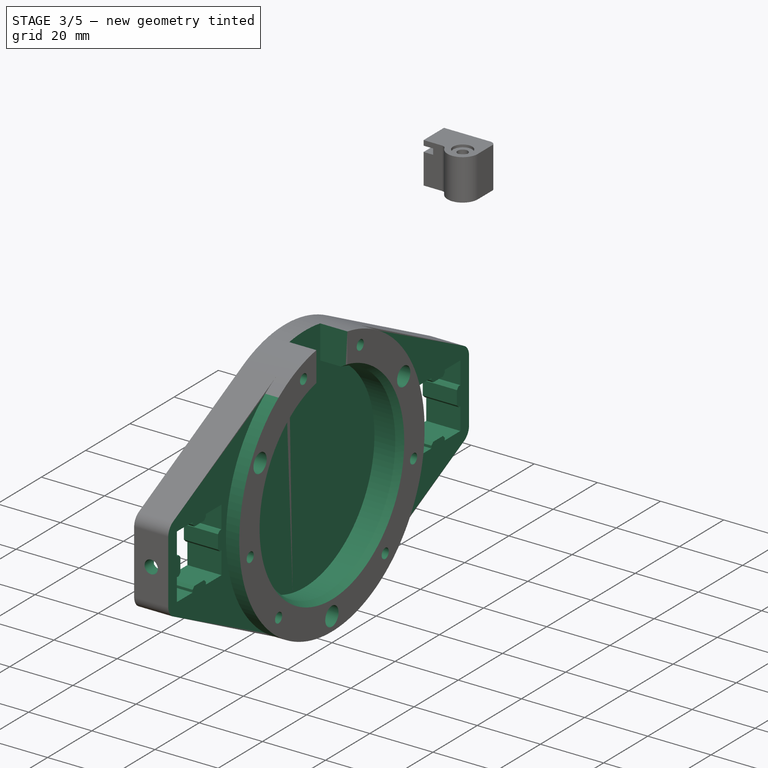
[diagram: stage 3 of 5 — iso view after this stage's code; geometry added in this stage tinted green]
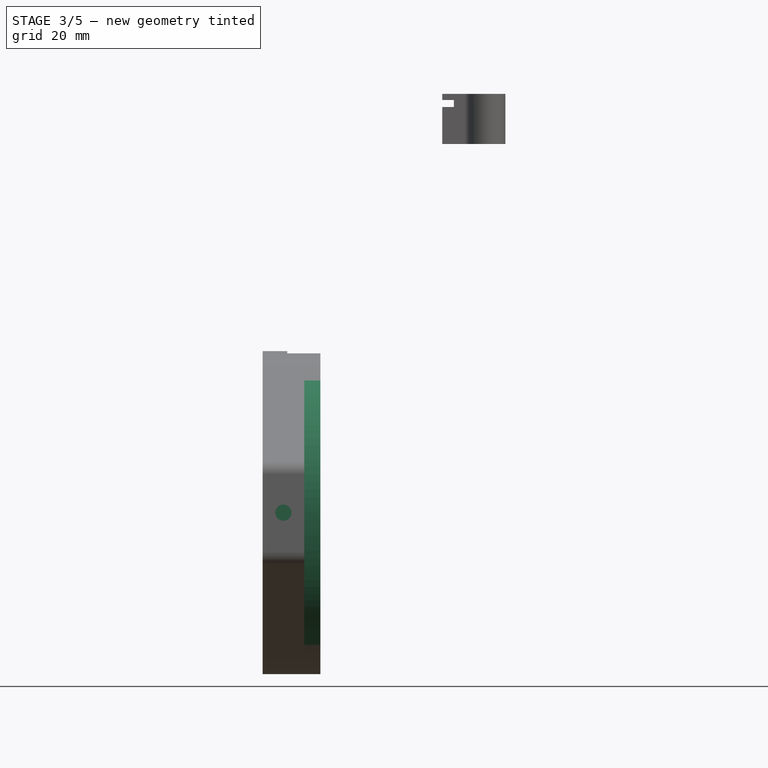
[diagram: stage 3 of 5 — front view after this stage's code; geometry added in this stage tinted green]
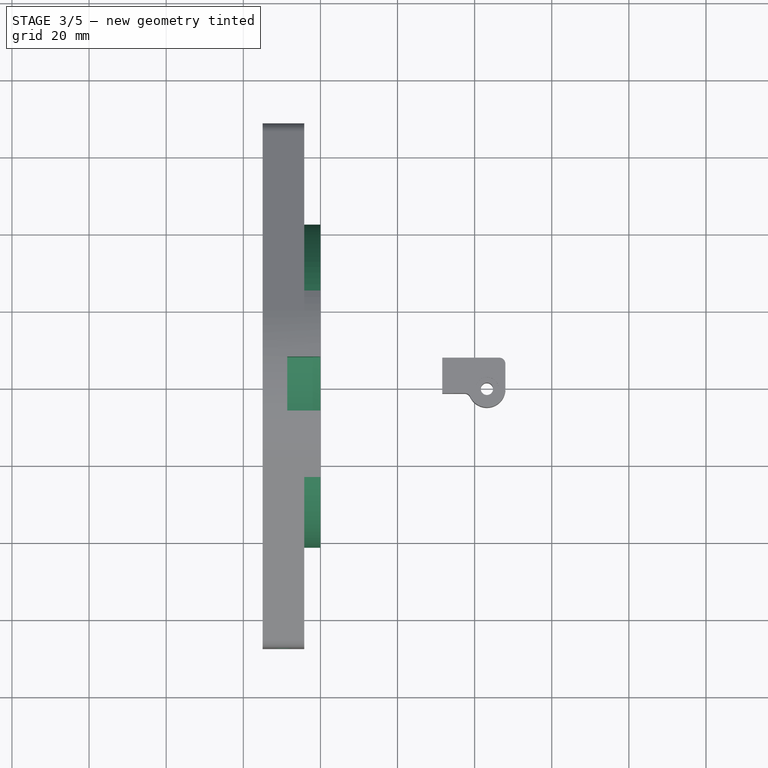
[diagram: stage 3 of 5 — top view after this stage's code; geometry added in this stage tinted green]
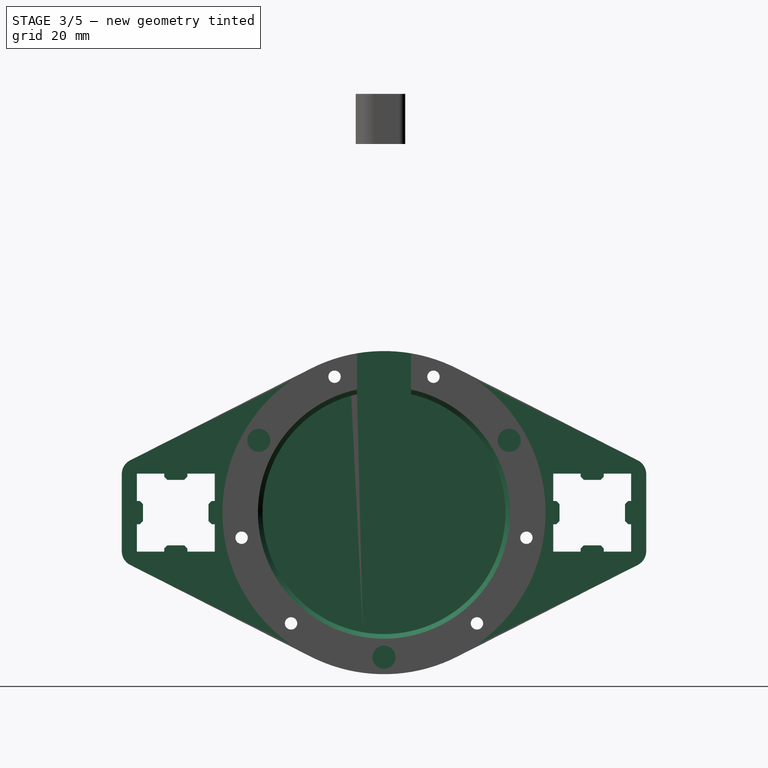
[diagram: stage 3 of 5 — right view after this stage's code; geometry added in this stage tinted green]
FEATURE [PartDesign::Body] Body008  label="P20_B"
  AllowCompound = false
  Group = -> [Clone]
  Origin = -> Origin009
  Placement = pos=(0,54,107) rot=(0,0,1;0rad)
  Tip = -> Clone
  expr: .Placement.Base.y = dd.P20_Y
  expr: .Placement.Base.z = dd.CG_Z
FEATURE [PartDesign::SubShapeBinder] Binder002  label="S_Binder002_P20"
  BindCopyOnChange = 0
  BindMode = 0
  ClaimChildren = false
  Context = -> Part001 [Body007.Binder002.]
  Fuse = false
  MakeFace = true
  OffsetFill = false
  OffsetIntersection = false
  OffsetJoinType = 0
  OffsetOpenResult = false
  PartialLoad = false
  Refine = true
  Relative = true
  Support = -> [Body[Pad.Face22],Body008[Clone.Face22]]
  _Version = 2
FEATURE [PartDesign::Pocket] Pocket  label="S_Pocket000"
  BaseFeature = -> Pad012
  Direction = (-1,0,-3e-16)
  Length = 5
  Length2 = 5
  Profile = -> Binder002
  Refine = true
  Suppressed = false
  Type = 1
FEATURE [Sketcher::SketchObject] Sketch015  label="S_Sketch015"
  ArcFitTolerance = 1e-06
  AttachmentSupport = -> [Binder]
  ExternalGeometry = -> [Binder,Pocket]
  FullyConstrained = true
  MakeInternals = false
  MapMode = 5
  Placement = pos=(-6.7e-15,0,0) rot=(0.57735,-0.57735,-0.57735;2.0944rad)
  sketch-geometry (8):
    g0: Circle CenterX=-32.476 CenterY=18.75 CenterZ=0 NormalX=0 NormalY=0 NormalZ=1 AngleXU=0 Radius=3
    g1: Circle CenterX=32.476 CenterY=18.75 CenterZ=0 NormalX=0 NormalY=0 NormalZ=1 AngleXU=0 Radius=3
    g2: Circle CenterX=0 CenterY=-37.5 CenterZ=0 NormalX=0 NormalY=0 NormalZ=1 AngleXU=0 Radius=3
    g3: Circle CenterX=0 CenterY=0 CenterZ=0 NormalX=0 NormalY=0 NormalZ=1 AngleXU=0 Radius=41.9
    g4: LineSegment StartX=-68 StartY=68 StartZ=0 EndX=-68 EndY=-68 EndZ=0
    g5: LineSegment StartX=-68 StartY=-68 StartZ=0 EndX=68 EndY=-68 EndZ=0
    g6: LineSegment StartX=68 StartY=-68 StartZ=0 EndX=68 EndY=68 EndZ=0
    g7: LineSegment StartX=68 StartY=68 StartZ=0 EndX=-68 EndY=68 EndZ=0
  constraints (19):
    c: Coincident(g0,g-5)
    c: Coincident(g1,g-4)
    c: Coincident(g2,g-3)
    c: Equal(g2,g0)
    c: Equal(g0,g1)
    c: Diameter(g2) = 6
    c: Coincident(g3,g-1)
    c: Coincident(g4,g5)
    c: Coincident(g5,g6)
    c: Coincident(g6,g7)
    c: Coincident(g7,g4)
    c: Vertical(g4)
    c: Vertical(g6)
    c: Horizontal(g5)
    c: Horizontal(g7)
    c: Symmetric(g5,g4,g3)
    c: Equal(g7,g4)
    c: PointOnObject(g-7,g4)
    c: Equal(g-6,g3)
FEATURE [PartDesign::Pocket] Pocket001  label="S_Pocket001"
  BaseFeature = -> Pocket
  Direction = (1,0,0)
  Length = 4.2
  Length2 = 5
  Profile = -> Sketch015
  ReferenceAxis = -> Sketch015 [N_Axis]
  Refine = true
  Reversed = true
  Suppressed = false
  Type = 0
FEATURE [Sketcher::SketchObject] Sketch016  label="S_Sketch016"
  ArcFitTolerance = 1e-06
  AttachmentSupport = -> [Binder]
  ExternalGeometry = -> [Pocket001,Binder]
  FullyConstrained = true
  MakeInternals = false
  MapMode = 5
  Placement = pos=(-6.7e-15,0,0) rot=(0.57735,-0.57735,-0.57735;2.0944rad)
  sketch-geometry (4):
    g0: ArcOfCircle CenterX=0 CenterY=0 CenterZ=0 NormalX=0 NormalY=0 NormalZ=1 AngleXU=0 Radius=31.5 StartAngle=1.79489 EndAngle=7.62989
    g1: ArcOfCircle CenterX=0 CenterY=0 CenterZ=0 NormalX=0 NormalY=0 NormalZ=1 AngleXU=0 Radius=41.9 StartAngle=1.40294 EndAngle=1.73865
    g2: LineSegment StartX=-7 StartY=30.7124 StartZ=0 EndX=-7 EndY=41.3111 EndZ=0
    g3: LineSegment StartX=7 StartY=30.7124 StartZ=0 EndX=7 EndY=41.3111 EndZ=0
  constraints (11):
    c: Coincident(g0,g-1)
    c: Coincident(g0,g-4)
    c: Coincident(g2,g0)
    c: Coincident(g2,g1)
    c: Coincident(g3,g0)
    c: Coincident(g3,g1)
    c: Vertical(g3)
    c: Vertical(g2)
    c: Equal(g-3,g1)
    c: PointOnObject(g-4,g3)
    c: Coincident(g1,g0)
FEATURE [PartDesign::Pocket] Pocket002  label="S_Pocket002"
  BaseFeature = -> Pocket001
  Direction = (1,0,0)
  Length = 8.6
  Length2 = 5
  Profile = -> Sketch016
  ReferenceAxis = -> Sketch016 [N_Axis]
  Refine = true
  Reversed = true
  Suppressed = false
  Type = 0
FEATURE [Sketcher::SketchObject] Sketch017  label="S_Sketch017"
  ArcFitTolerance = 1e-06
  AttachmentSupport = -> [Pocket002]
  ExternalGeometry = -> [Binder]
  FullyConstrained = true
  MakeInternals = false
  MapMode = 5
  Placement = pos=(-15,0,0) rot=(0.57735,-0.57735,-0.57735;2.0944rad)
  sketch-geometry (6):
    g0: Circle CenterX=-12.8258 CenterY=35.2385 CenterZ=0 NormalX=0 NormalY=0 NormalZ=1 AngleXU=0 Radius=1.5
    g1: Circle CenterX=12.8258 CenterY=35.2385 CenterZ=0 NormalX=0 NormalY=0 NormalZ=1 AngleXU=0 Radius=1.5
    g2: Circle CenterX=36.9303 CenterY=-6.51181 CenterZ=0 NormalX=0 NormalY=0 NormalZ=1 AngleXU=0 Radius=1.5
    g3: Circle CenterX=24.1045 CenterY=-28.7267 CenterZ=0 NormalX=0 NormalY=0 NormalZ=1 AngleXU=0 Radius=1.5
    g4: Circle CenterX=-24.1045 CenterY=-28.7267 CenterZ=0 NormalX=0 NormalY=0 NormalZ=1 AngleXU=0 Radius=1.5
    g5: Circle CenterX=-36.9303 CenterY=-6.51181 CenterZ=0 NormalX=0 NormalY=0 NormalZ=1 AngleXU=0 Radius=1.5
  constraints (12):
    c: Coincident(g0,g-3)
    c: Equal(g0,g-3)
    c: Coincident(g1,g-7)
    c: Equal(g1,g-7)
    c: Coincident(g2,g-8)
    c: Equal(g2,g-8)
    c: Coincident(g3,g-6)
    c: Equal(g3,g-6)
    c: Coincident(g4,g-5)
    c: Equal(g4,g-5)
    c: Coincident(g5,g-4)
    c: Equal(g5,g-4)
FEATURE [PartDesign::Hole] Hole  label="S_Hole000"
  BaseFeature = -> Pocket002
  CustomThreadClearance = 0
  Depth = 307.566
  DepthType = 1
  Diameter = 3.2
  DrillForDepth = false
  DrillPoint = 1
  DrillPointAngle = 118
  HoleCutCountersinkAngle = 179
  HoleCutCustomValues = false
  HoleCutDepth = 3.2
  HoleCutDiameter = 6
  HoleCutType = 3
  ModelThread = false
  Profile = -> Sketch017
  Refine = true
  Suppressed = false
  Tapered = false
  TaperedAngle = 90
  ThreadClass = 0
  ThreadDepth = 307.566
  ThreadDepthType = 0
  ThreadDirection = 0
  ThreadFit = 0
  ThreadSize = 0
  ThreadType = 0
  Threaded = false
  UseCustomThreadClearance = false
FEATURE [Sketcher::SketchObject] Sketch018  label="S_Sketch018"
  ArcFitTolerance = 1e-06
  AttachmentSupport = -> [Hole]
  ExternalGeometry = -> [Hole]
  FullyConstrained = true
  MakeInternals = false
  MapMode = 5
  Placement = pos=(0,-68,0) rot=(1,0,0;1.5708rad)
  sketch-geometry (3):
    g0: LineSegment [constr] StartX=-4.2 StartY=0 StartZ=0 EndX=-9.6 EndY=0 EndZ=0
    g1: LineSegment [constr] StartX=-9.6 StartY=0 StartZ=0 EndX=-15 EndY=3.73e-13 EndZ=0
    g2: Circle CenterX=-9.6 CenterY=0 CenterZ=0 NormalX=0 NormalY=0 NormalZ=1 AngleXU=0 Radius=2.1
  constraints (8):
    c: PointOnObject(g0,g-1)
    c: Coincident(g1,g0)
    c: Symmetric(g-3,g-3,g1)
    c: Equal(g1,g0)
    c: Coincident(g2,g0)
    c: Diameter(g2) = 4.2
    c: PointOnObject(g0,g-4)
    c: Horizontal(g0)
FEATURE [PartDesign::Chamfer] Chamfer  label="S_Chamfer000"
  Angle = 45
  Base = -> Hole [Edge187]
  BaseFeature = -> Hole
  ChamferType = 1
  FlipDirection = false
  Refine = true
  Size = 1.2
  Size2 = 2
  SupportTransform = false
  Suppressed = false
  UseAllEdges = false
FEATURE [PartDesign::Chamfer] Chamfer001  label="S_Chamfer001"
  Angle = 45
  Base = -> Chamfer [Edge221,Edge140,Edge119,Edge118,Edge218,Edge216,Edge210,Edge211,Edge219,Edge228,Edge226,Edge116,Edge115,Edge117,Edge188,Edge187,Edge183,Edge182,Edge198,Edge197,Edge193,Edge192]
  BaseFeature = -> Chamfer
  ChamferType = 0
  FlipDirection = false
  Refine = true
  Size = 0.8
  Size2 = 1.2
  SupportTransform = false
  Suppressed = false
  UseAllEdges = false
FEATURE [PartDesign::Hole] Hole001  label="S_Hole001"
  BaseFeature = -> Chamfer001
  CustomThreadClearance = 0
  Depth = 10
  DepthType = 0
  Diameter = 4.2
  DrillForDepth = false
  DrillPoint = 0
  DrillPointAngle = 118
  HoleCutCountersinkAngle = 90
  HoleCutCustomValues = false
  HoleCutDepth = 0
  HoleCutDiameter = 6.1
  HoleCutType = 0
  ModelThread = false
  Profile = -> Sketch018
  Refine = true
  Suppressed = false
  Tapered = false
  TaperedAngle = 90
  ThreadClass = 0
  ThreadDepth = 10
  ThreadDepthType = 0
  ThreadDirection = 0
  ThreadFit = 0
  ThreadSize = 0
  ThreadType = 0
  Threaded = false
  UseCustomThreadClearance = false
FEATURE [Sketcher::SketchObject] Sketch019  label="S_Sketch019"
  ArcFitTolerance = 1e-06
  AttachmentSupport = -> [XY_Plane008]
  ExternalGeometry = -> [Hole001]
  FullyConstrained = true
  MakeInternals = false
  MapMode = 5
  sketch-geometry (5):
    g0: LineSegment [constr] StartX=-9.6 StartY=-62.5 StartZ=0 EndX=-9.6 EndY=-64.2 EndZ=0
    g1: LineSegment StartX=-12.6 StartY=-64.2 StartZ=0 EndX=-6.6 EndY=-64.2 EndZ=0
    g2: LineSegment StartX=-6.6 StartY=-64.2 StartZ=0 EndX=-6.6 EndY=-62.5 EndZ=0
    g3: LineSegment StartX=-6.6 StartY=-62.5 StartZ=0 EndX=-12.6 EndY=-62.5 EndZ=0
    g4: LineSegment StartX=-12.6 StartY=-62.5 StartZ=0 EndX=-12.6 EndY=-64.2 EndZ=0
  constraints (13):
    c: Coincident(g1,g2)
    c: Coincident(g2,g3)
    c: Coincident(g3,g4)
    c: Coincident(g4,g1)
    c: Horizontal(g1)
    c: Vertical(g2)
    c: Vertical(g4)
    c: Symmetric(g2,g3,g0)
    c: DistanceX(g3,g2) = 6
    c: Symmetric(g-4,g-4,g0)
    c: Symmetric(g-3,g-3,g0)
    c: PointOnObject(g-3,g3)
    c: PointOnObject(g-4,g1)
FEATURE [PartDesign::Pocket] Pocket003  label="S_Pocket003"
  BaseFeature = -> Hole001
  Direction = (0,0,-1)
  Length = 6
  Length2 = 5
  Midplane = true
  Profile = -> Sketch019
  ReferenceAxis = -> Sketch019 [N_Axis]
  Refine = true
  Suppressed = false
  Type = 0
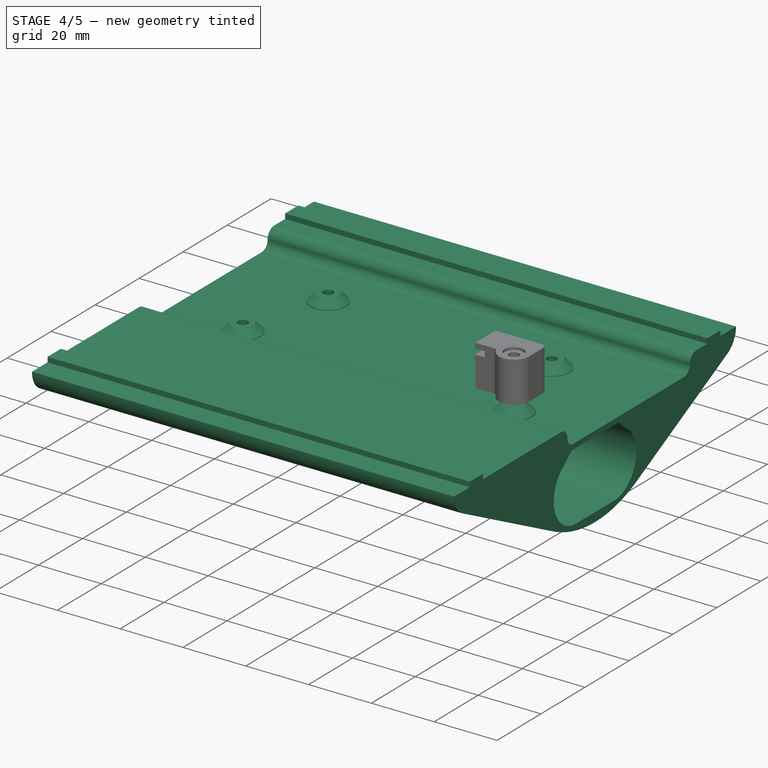
[diagram: stage 4 of 5 — iso view after this stage's code; geometry added in this stage tinted green]
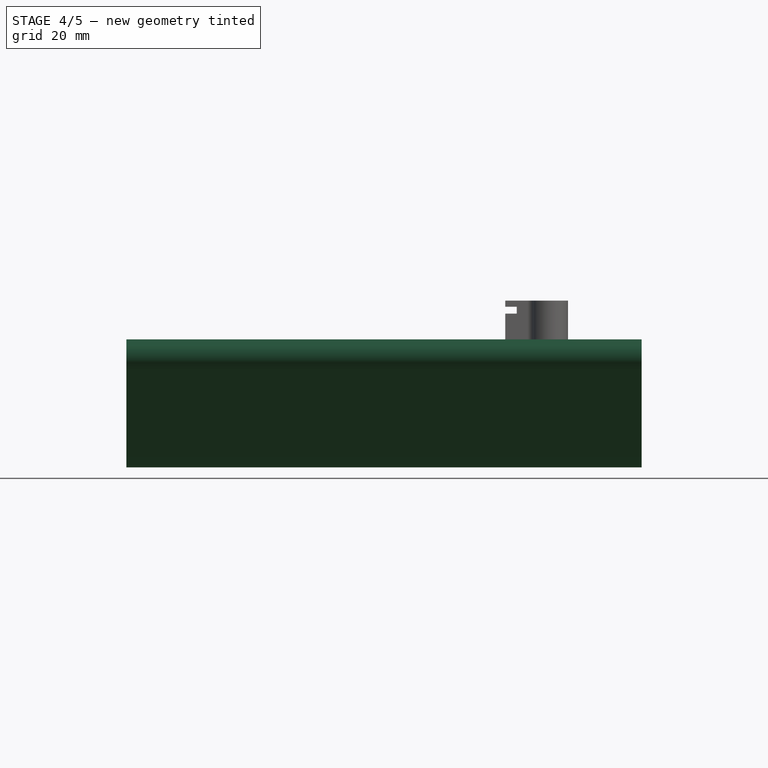
[diagram: stage 4 of 5 — front view after this stage's code; geometry added in this stage tinted green]
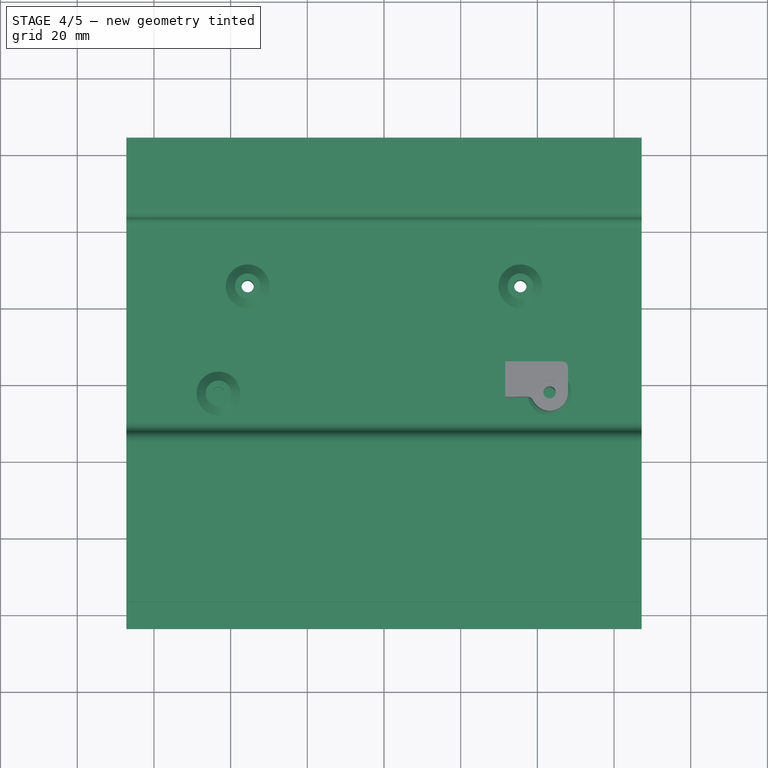
[diagram: stage 4 of 5 — top view after this stage's code; geometry added in this stage tinted green]
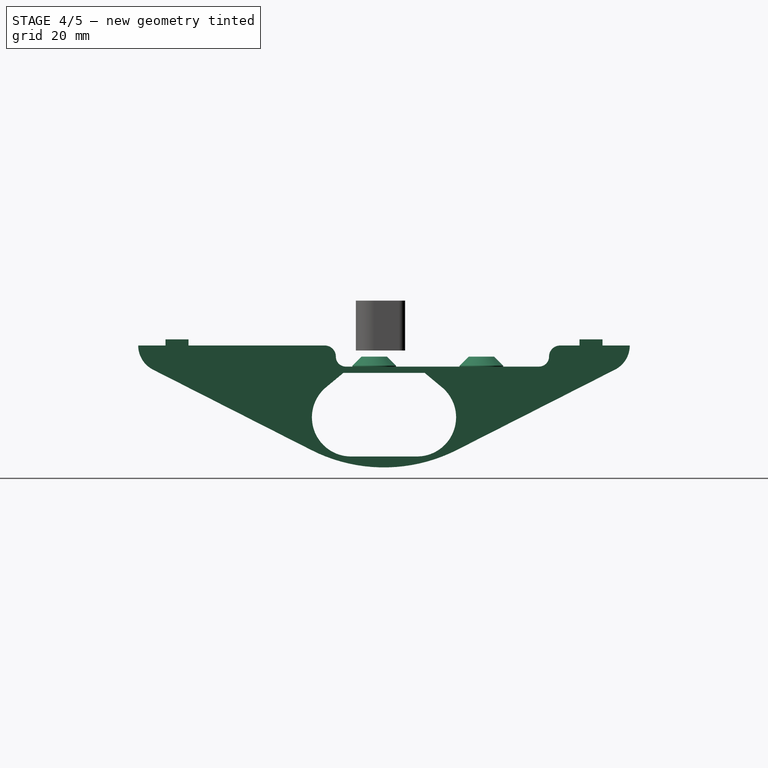
[diagram: stage 4 of 5 — right view after this stage's code; geometry added in this stage tinted green]
FEATURE [PartDesign::Mirrored] Mirrored  label="S_Mirrored000"
  BaseFeature = -> Pocket003
  MirrorPlane = -> XZ_Plane008
  Originals = -> [Hole001,Pocket003]
  Refine = true
  Suppressed = false
  TransformMode = 0
FEATURE [PartDesign::Body] Body010  label="Plate"
  AllowCompound = false
  Group = -> [Sketch021,Pad014]
  Origin = -> Origin011
  Tip = -> Pad014
FEATURE [App::Part] Part  label="Sketch"
  Group = -> [Body010]
  Origin = -> Origin
FEATURE [PartDesign::SubShapeBinder] Binder005  label="M_Binder005_P"
  BindCopyOnChange = 0
  BindMode = 0
  ClaimChildren = false
  Context = -> Part001 [Body009.Binder005.]
  Fuse = false
  MakeFace = true
  OffsetFill = false
  OffsetIntersection = false
  OffsetJoinType = 0
  OffsetOpenResult = false
  PartialLoad = false
  Refine = true
  Relative = true
  Support = -> [Part[Body010.Sketch021.]]
  _Version = 2
FEATURE [Sketcher::SketchObject] Sketch020  label="M_Sketch020"
  ArcFitTolerance = 1e-06
  AttachmentSupport = -> [YZ_Plane010]
  ExternalGeometry = -> [Binder003,Binder004,Binder005]
  FullyConstrained = true
  MakeInternals = false
  MapMode = 5
  Placement = pos=(0,0,0) rot=(0.57735,0.57735,0.57735;2.0944rad)
  sketch-geometry (28):
    g0: ArcOfCircle CenterX=0 CenterY=107 CenterZ=0 NormalX=0 NormalY=0 NormalZ=1 AngleXU=0 Radius=41.9 StartAngle=4.2424 EndAngle=5.18238
    g1: LineSegment StartX=18.9756 StartY=69.6431 StartZ=0 EndX=60.2344 EndY=90.6008 EndZ=0
    g2: LineSegment StartX=-18.9756 StartY=69.6431 StartZ=0 EndX=-60.2344 EndY=90.6008 EndZ=0
    g3: LineSegment StartX=-64.1 StartY=96.9 StartZ=0 EndX=-57 EndY=96.9 EndZ=0
    g4: LineSegment StartX=-57 StartY=96.9 StartZ=0 EndX=-57 EndY=98.5 EndZ=0
    g5: LineSegment StartX=-57 StartY=98.5 StartZ=0 EndX=-51 EndY=98.5 EndZ=0
    g6: LineSegment StartX=-51 StartY=98.5 StartZ=0 EndX=-51 EndY=96.9 EndZ=0
    g7: LineSegment StartX=45.94 StartY=96.9 StartZ=0 EndX=51 EndY=96.9 EndZ=0
    g8: LineSegment StartX=51 StartY=96.9 StartZ=0 EndX=51 EndY=98.5 EndZ=0
    g9: LineSegment StartX=51 StartY=98.5 StartZ=0 EndX=57 EndY=98.5 EndZ=0
    g10: LineSegment StartX=57 StartY=98.5 StartZ=0 EndX=57 EndY=96.9 EndZ=0
    g11: LineSegment StartX=57 StartY=96.9 StartZ=0 EndX=64.1 EndY=96.9 EndZ=0
    g12: ArcOfCircle CenterX=-8.6 CenterY=78.1547 CenterZ=0 NormalX=0 NormalY=0 NormalZ=1 AngleXU=0 Radius=10.2 StartAngle=2.26413 EndAngle=4.71239
    g13: ArcOfCircle CenterX=8.6 CenterY=78.1547 CenterZ=0 NormalX=0 NormalY=0 NormalZ=1 AngleXU=0 Radius=10.2 StartAngle=4.71239 EndAngle=7.16065
    g14: LineSegment StartX=-8.6 StartY=67.9547 StartZ=0 EndX=8.6 EndY=67.9547 EndZ=0
    g15: LineSegment [constr] StartX=-18.8 StartY=78.1547 StartZ=0 EndX=18.8 EndY=78.1547 EndZ=0
    g16: LineSegment [constr] StartX=-11.5143 StartY=68.3799 StartZ=0 EndX=-11.9714 EndY=66.8466 EndZ=0
    g17: LineSegment StartX=-9.96 StartY=91.4 StartZ=0 EndX=40.44 EndY=91.4 EndZ=0
    g18: ArcOfCircle CenterX=40.44 CenterY=94 CenterZ=0 NormalX=0 NormalY=0 NormalZ=1 AngleXU=0 Radius=2.6 StartAngle=4.71239 EndAngle=6.28319
    g19: ArcOfCircle CenterX=-9.96 CenterY=94 CenterZ=0 NormalX=0 NormalY=0 NormalZ=1 AngleXU=0 Radius=2.6 StartAngle=3.14159 EndAngle=4.71239
    g20: LineSegment StartX=-51 StartY=96.9 StartZ=0 EndX=-15.46 EndY=96.9 EndZ=0
    g21: LineSegment StartX=-15.1189 StartY=85.9997 StartZ=0 EndX=-10.6 EndY=89.7547 EndZ=0
    g22: LineSegment StartX=-10.6 StartY=89.7547 StartZ=0 EndX=10.6 EndY=89.7547 EndZ=0
    g23: LineSegment StartX=10.6 StartY=89.7547 StartZ=0 EndX=15.1189 EndY=85.9997 EndZ=0
    g24: ArcOfCircle CenterX=45.94 CenterY=94 CenterZ=0 NormalX=0 NormalY=0 NormalZ=1 AngleXU=0 Radius=2.9 StartAngle=1.5708 EndAngle=3.14159
    g25: ArcOfCircle CenterX=-15.46 CenterY=94 CenterZ=0 NormalX=0 NormalY=0 NormalZ=1 AngleXU=0 Radius=2.9 StartAngle=-1.8e-15 EndAngle=1.5708
    g26: ArcOfCircle CenterX=-57.0347 CenterY=96.9 CenterZ=0 NormalX=0 NormalY=0 NormalZ=1 AngleXU=0 Radius=7.06527 StartAngle=3.14159 EndAngle=4.2424
    g27: ArcOfCircle CenterX=57.0347 CenterY=96.9 CenterZ=0 NormalX=0 NormalY=0 NormalZ=1 AngleXU=0 Radius=7.06527 StartAngle=5.18238 EndAngle=6.28319
  constraints (68):
    c: Coincident(g0,g-3)
    c: Tangent(g2,g0) = 1.5708
    c: Tangent(g0,g1) = -1.5708
    c: Equal(g-3,g0)
    c: Coincident(g3,g4)
    c: Coincident(g4,g-8)
    c: Vertical(g4)
    c: Coincident(g4,g5)
    c: Coincident(g5,g-8)
    c: Coincident(g5,g6)
    c: Coincident(g6,g-9)
    c: Coincident(g7,g-7)
    c: Coincident(g7,g8)
    c: Coincident(g8,g-6)
    c: Coincident(g8,g9)
    c: Coincident(g9,g-6)
    c: Coincident(g9,g10)
    c: Coincident(g10,g11)
    c: Horizontal(g11)
    c: Vertical(g10)
    c: PointOnObject(g6,g3)
    c: Horizontal(g14)
    c: Tangent(g13,g14) = -1.5708
    c: Tangent(g14,g12) = -1.5708
    c: Radius(g12) = 10.2
    c: Symmetric(g12,g13,g-2)
    c: PointOnObject(g15,g12)
    c: PointOnObject(g15,g13)
    c: Horizontal(g15)
    c: PointOnObject(g13,g15)
    c: Distance(g15,g15) = 37.6
    c: PointOnObject(g16,g12)
    c: PointOnObject(g16,g0)
    c: PointOnObject(g0,g16)
    c: PointOnObject(g12,g16)
    c: Distance(g16,g16) = 1.6
    c: Horizontal(g17)
    c: Coincident(g18,g-10)
    c: Tangent(g18,g17) = -1.5708
    c: Radius(g18) = 2.6
    c: Horizontal(g7)
    c: Coincident(g19,g-10)
    c: Tangent(g19,g17) = -1.5708
    c: Coincident(g20,g6)
    c: Horizontal(g20)
    c: Coincident(g21,g22)
    c: Coincident(g22,g23)
    c: Symmetric(g22,g21,g-2)
    c: Tangent(g12,g21) = 1.5708
    c: Tangent(g23,g13) = 1.5708
    c: DistanceY(g13,g22) = 21.8
    c: DistanceX(g22,g22) = 21.2
    c: Tangent(g20,g25) = 1.5708
    c: Tangent(g19,g25) = 1.5708
    c: Tangent(g18,g24) = 1.5708
    c: Tangent(g7,g24) = 1.5708
    c: PointOnObject(g24,g-10)
    c: PointOnObject(g25,g-10)
    c: Coincident(g26,g3)
    c: Tangent(g26,g2) = 1.5708
    c: Coincident(g3,g-11)
    c: PointOnObject(g-4,g2)
    c: PointOnObject(g26,g3)
    c: Coincident(g-12,g11)
    c: PointOnObject(g27,g11)
    c: Coincident(g27,g11)
    c: Tangent(g1,g27) = -1.5708
    c: PointOnObject(g-5,g1)
FEATURE [PartDesign::Pad] Pad013  label="M_Pad013"
  Direction = (1,0,0)
  Length = 134.4
  Length2 = 10
  Midplane = true
  Placement = pos=(0,0,0) rot=(1,1,1;2.0944rad)
  Profile = -> Sketch020
  ReferenceAxis = -> Sketch020 [N_Axis]
  Refine = true
  Suppressed = false
  Type = 0
  expr: Length = dd.P20_Len - 21.6 mm
FEATURE [Sketcher::SketchObject] Sketch022  label="M_Sketch022"
  ArcFitTolerance = 1e-06
  AttachmentSupport = -> [Binder005]
  ExternalGeometry = -> [Binder005]
  FullyConstrained = true
  MakeInternals = false
  MapMode = 5
  Placement = pos=(0,0,94) rot=(0,0,1;0rad)
  sketch-geometry (4):
    g0: Circle CenterX=-35.56 CenterY=25.4 CenterZ=0 NormalX=0 NormalY=0 NormalZ=1 AngleXU=0 Radius=5.7
    g1: Circle CenterX=35.56 CenterY=25.4 CenterZ=0 NormalX=0 NormalY=0 NormalZ=1 AngleXU=0 Radius=5.7
    g2: Circle CenterX=43.18 CenterY=-2.54 CenterZ=0 NormalX=0 NormalY=0 NormalZ=1 AngleXU=0 Radius=5.7
    g3: Circle CenterX=-43.18 CenterY=-2.54 CenterZ=0 NormalX=0 NormalY=0 NormalZ=1 AngleXU=0 Radius=5.7
  constraints (8):
    c: Coincident(g0,g-4)
    c: Coincident(g1,g-5)
    c: Coincident(g2,g-6)
    c: Coincident(g3,g-3)
    c: Equal(g3,g0)
    c: Equal(g0,g2)
    c: Equal(g2,g1)
    c: Diameter(g0) = 11.4
FEATURE [PartDesign::Pad] Pad015  label="M_Pad015"
  BaseFeature = -> Pad013
  Direction = (0,0,1)
  Length = 10
  Length2 = 10
  Placement = pos=(0,0,0) rot=(1,1,1;2.0944rad)
  Profile = -> Sketch022
  ReferenceAxis = -> Sketch022 [N_Axis]
  Refine = true
  Reversed = true
  Suppressed = false
  Type = 2
FEATURE [PartDesign::Chamfer] Chamfer002  label="M_Chamfer002"
  Angle = 45
  Base = -> Pad015 [Edge90,Edge88,Edge86,Edge84]
  BaseFeature = -> Pad015
  ChamferType = 0
  FlipDirection = false
  Placement = pos=(0,0,0) rot=(1,1,1;2.0944rad)
  Refine = true
  Size = 2.39
  Size2 = 1
  SupportTransform = false
  Suppressed = false
  UseAllEdges = false
FEATURE [PartDesign::Pocket] Pocket004  label="M_Pocket004"
  BaseFeature = -> Chamfer002
  Direction = (0,0,-1)
  Length = 5
  Length2 = 5
  Placement = pos=(0,0,0) rot=(1,1,1;2.0944rad)
  Profile = -> Binder005 [Edge8,Edge7]
  Refine = true
  Suppressed = false
  Type = 0
FEATURE [PartDesign::Pocket] Pocket005  label="M_Pocket005"
  BaseFeature = -> Pocket004
  Direction = (0,0,-1)
  Length = 5
  Length2 = 5
  Placement = pos=(0,0,0) rot=(1,1,1;2.0944rad)
  Profile = -> Binder005 [Edge6,Edge5]
  Refine = true
  Suppressed = false
  Type = 1
FEATURE [Sketcher::SketchObject] Sketch023  label="M_Sketch023"
  ArcFitTolerance = 1e-06
  AttachmentOffset = pos=(0,0,-12.4) rot=(0,0,1;0rad)
  AttachmentSupport = -> [Pocket005]
  ExternalGeometry = -> [Pocket005]
  FullyConstrained = true
  MakeInternals = false
  MapMode = 5
  Placement = pos=(-8.77e-14,6.09e-14,79) rot=(0,0,-1;1.5708rad)
  sketch-geometry (14):
    g0: LineSegment StartX=-22.1 StartY=-35.56 StartZ=0 EndX=-23.75 EndY=-32.7021 EndZ=0
    g1: LineSegment StartX=-23.75 StartY=-32.7021 StartZ=0 EndX=-27.05 EndY=-32.7021 EndZ=0
    g2: LineSegment StartX=-27.05 StartY=-32.7021 StartZ=0 EndX=-28.7 EndY=-35.56 EndZ=0
    g3: LineSegment StartX=-28.7 StartY=-35.56 StartZ=0 EndX=-27.05 EndY=-38.4179 EndZ=0
    g4: LineSegment StartX=-27.05 StartY=-38.4179 StartZ=0 EndX=-23.75 EndY=-38.4179 EndZ=0
    g5: LineSegment StartX=-23.75 StartY=-38.4179 StartZ=0 EndX=-22.1 EndY=-35.56 EndZ=0
    g6: Circle [constr] CenterX=-25.4 CenterY=-35.56 CenterZ=0 NormalX=0 NormalY=0 NormalZ=1 AngleXU=0 Radius=3.3
    g7: LineSegment StartX=-22.1 StartY=35.56 StartZ=0 EndX=-23.75 EndY=38.4179 EndZ=0
    g8: LineSegment StartX=-23.75 StartY=38.4179 StartZ=0 EndX=-27.05 EndY=38.4179 EndZ=0
    g9: LineSegment StartX=-27.05 StartY=38.4179 StartZ=0 EndX=-28.7 EndY=35.56 EndZ=0
    g10: LineSegment StartX=-28.7 StartY=35.56 StartZ=0 EndX=-27.05 EndY=32.7021 EndZ=0
    g11: LineSegment StartX=-27.05 StartY=32.7021 StartZ=0 EndX=-23.75 EndY=32.7021 EndZ=0
    g12: LineSegment StartX=-23.75 StartY=32.7021 StartZ=0 EndX=-22.1 EndY=35.56 EndZ=0
    g13: Circle [constr] CenterX=-25.4 CenterY=35.56 CenterZ=0 NormalX=0 NormalY=0 NormalZ=1 AngleXU=0 Radius=3.3
  constraints (32):
    c: Coincident(g0,g1)
    c: Coincident(g1,g2)
    c: Coincident(g2,g3)
    c: Coincident(g3,g4)
    c: Coincident(g4,g5)
    c: Coincident(g5,g0)
    c: Equal(g0, g1-g5) x5
    c: PointOnObject(g0,g6)
    c: PointOnObject(g1,g6)
    c: PointOnObject(g2,g6)
    c: PointOnObject(g3,g6)
    c: PointOnObject(g4,g6)
    c: PointOnObject(g5,g6)
    c: Coincident(g6,g-3)
    c: Coincident(g7,g8)
    c: Coincident(g8,g9)
    c: Coincident(g9,g10)
    c: Coincident(g10,g11)
    c: Coincident(g11,g12)
    c: Coincident(g12,g7)
    c: Equal(g7, g8-g12) x5
    c: PointOnObject(g7,g13)
    c: PointOnObject(g8,g13)
    c: PointOnObject(g9,g13)
    c: PointOnObject(g10,g13)
    c: PointOnObject(g11,g13)
    c: PointOnObject(g12,g13)
    c: Coincident(g13,g-4)
    c: Horizontal(g1)
    c: Horizontal(g8)
    c: Equal(g6,g13)
    c: Diameter(g13) = 6.6
FEATURE [PartDesign::Pocket] Pocket006  label="M_Pocket006"
  BaseFeature = -> Pocket005
  Direction = (1.1e-15,0,-1)
  Length = 5
  Length2 = 5
  Placement = pos=(0,0,0) rot=(1,1,1;2.0944rad)
  Profile = -> Sketch023
  ReferenceAxis = -> Sketch023 [N_Axis]
  Refine = true
  Suppressed = false
  Type = 1
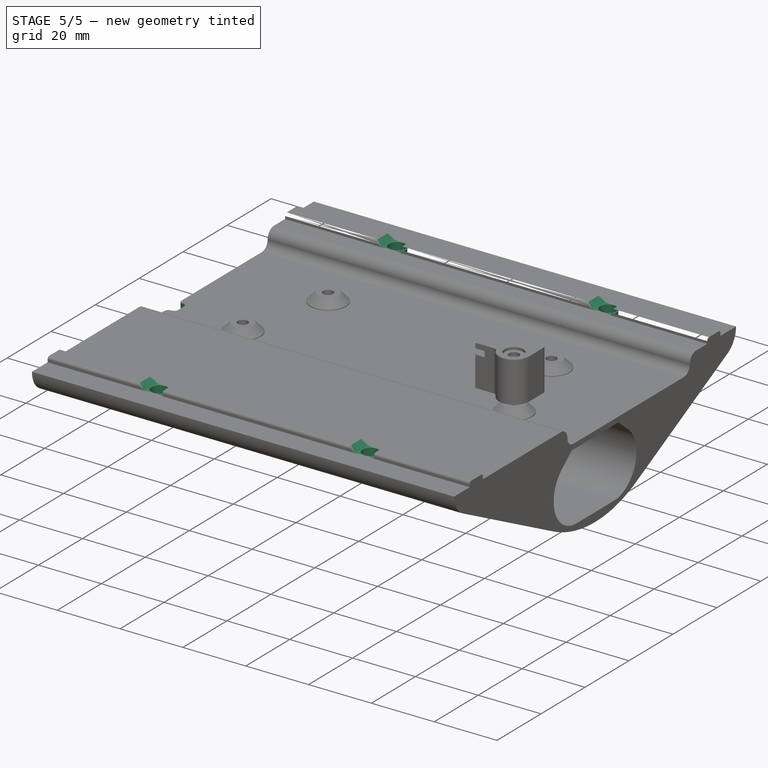
[diagram: stage 5 of 5 — iso view after this stage's code; geometry added in this stage tinted green]
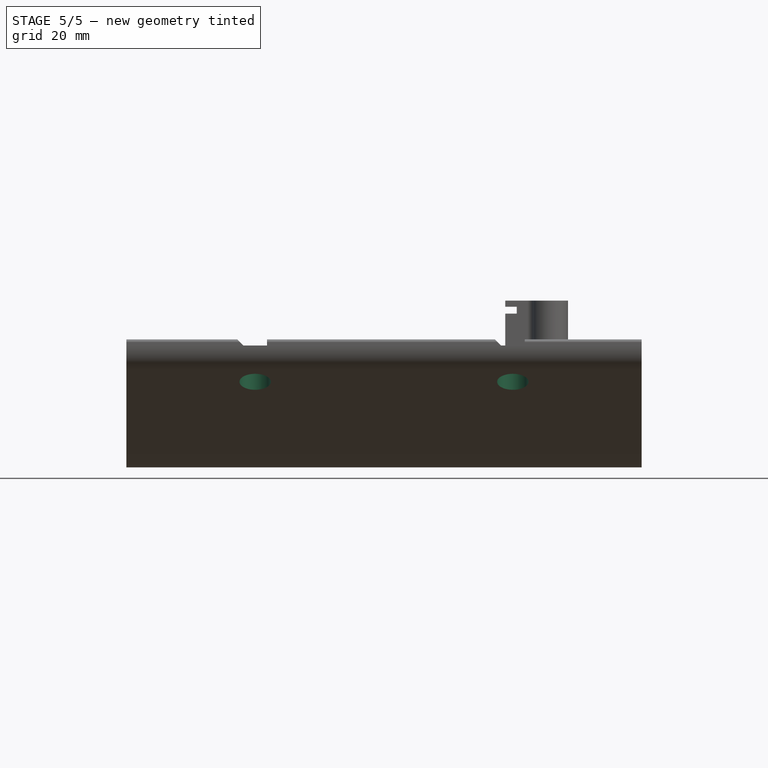
[diagram: stage 5 of 5 — front view after this stage's code; geometry added in this stage tinted green]
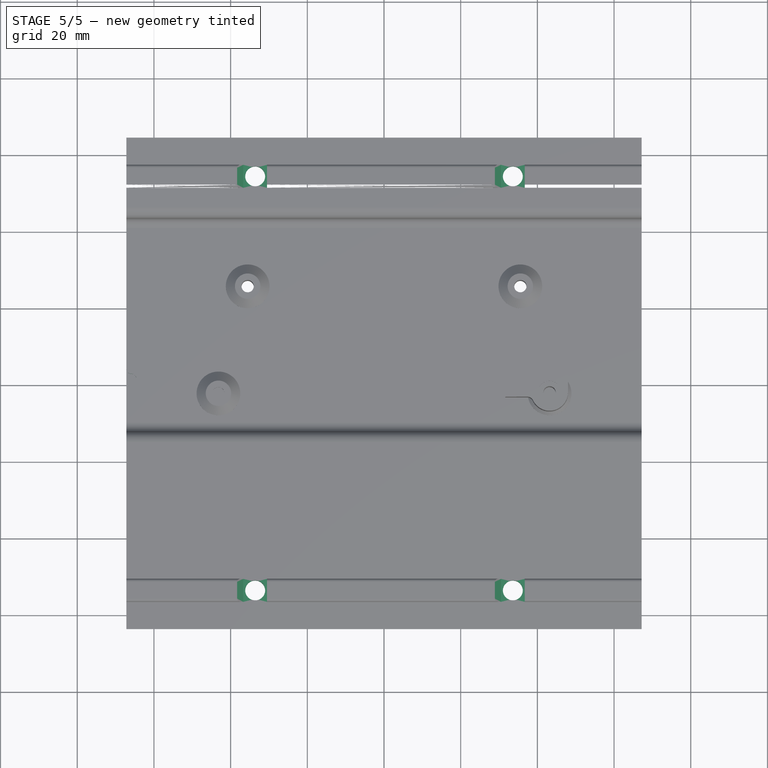
[diagram: stage 5 of 5 — top view after this stage's code; geometry added in this stage tinted green]
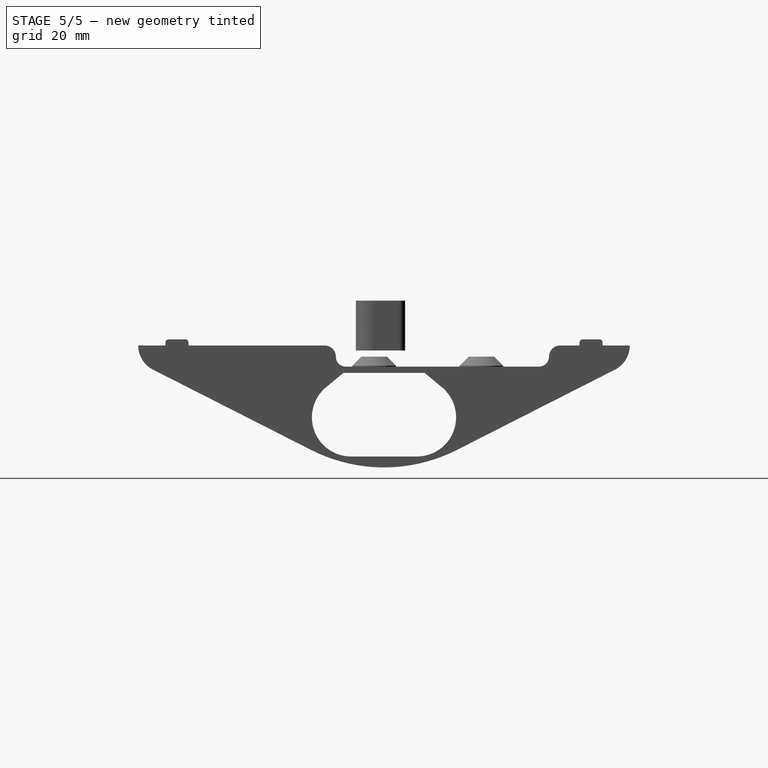
[diagram: stage 5 of 5 — right view after this stage's code; geometry added in this stage tinted green]
FEATURE [Sketcher::SketchObject] Sketch024  label="M_Sketch024"
  ArcFitTolerance = 1e-06
  AttachmentSupport = -> [Pocket006]
  ExternalGeometry = -> [Pocket006]
  FullyConstrained = true
  MakeInternals = false
  MapMode = 5
  Placement = pos=(-1.295e-13,6.98e-14,89.7547) rot=(0.707107,0.707107,0;3.14159rad)
  sketch-geometry (14):
    g0: LineSegment StartX=0.76 StartY=-43.18 StartZ=0 EndX=-0.89 EndY=-40.3221 EndZ=0
    g1: LineSegment StartX=-0.89 StartY=-40.3221 StartZ=0 EndX=-4.19 EndY=-40.3221 EndZ=0
    g2: LineSegment StartX=-4.19 StartY=-40.3221 StartZ=0 EndX=-5.84 EndY=-43.18 EndZ=0
    g3: LineSegment StartX=-5.84 StartY=-43.18 StartZ=0 EndX=-4.19 EndY=-46.0379 EndZ=0
    g4: LineSegment StartX=-4.19 StartY=-46.0379 StartZ=0 EndX=-0.89 EndY=-46.0379 EndZ=0
    g5: LineSegment StartX=-0.89 StartY=-46.0379 StartZ=0 EndX=0.76 EndY=-43.18 EndZ=0
    g6: Circle [constr] CenterX=-2.54 CenterY=-43.18 CenterZ=0 NormalX=0 NormalY=0 NormalZ=1 AngleXU=0 Radius=3.3
    g7: LineSegment StartX=0.76 StartY=43.18 StartZ=0 EndX=-0.89 EndY=46.0379 EndZ=0
    g8: LineSegment StartX=-0.89 StartY=46.0379 StartZ=0 EndX=-4.19 EndY=46.0379 EndZ=0
    g9: LineSegment StartX=-4.19 StartY=46.0379 StartZ=0 EndX=-5.84 EndY=43.18 EndZ=0
    g10: LineSegment StartX=-5.84 StartY=43.18 StartZ=0 EndX=-4.19 EndY=40.3221 EndZ=0
    g11: LineSegment StartX=-4.19 StartY=40.3221 StartZ=0 EndX=-0.89 EndY=40.3221 EndZ=0
    g12: LineSegment StartX=-0.89 StartY=40.3221 StartZ=0 EndX=0.76 EndY=43.18 EndZ=0
    g13: Circle [constr] CenterX=-2.54 CenterY=43.18 CenterZ=0 NormalX=0 NormalY=0 NormalZ=1 AngleXU=0 Radius=3.3
  constraints (32):
    c: Coincident(g0,g1)
    c: Coincident(g1,g2)
    c: Coincident(g2,g3)
    c: Coincident(g3,g4)
    c: Coincident(g4,g5)
    c: Coincident(g5,g0)
    c: Equal(g0, g1-g5) x5
    c: PointOnObject(g0,g6)
    c: PointOnObject(g1,g6)
    c: PointOnObject(g2,g6)
    c: PointOnObject(g3,g6)
    c: PointOnObject(g4,g6)
    c: PointOnObject(g5,g6)
    c: Coincident(g6,g-3)
    c: Coincident(g7,g8)
    c: Coincident(g8,g9)
    c: Coincident(g9,g10)
    c: Coincident(g10,g11)
    c: Coincident(g11,g12)
    c: Coincident(g12,g7)
    c: Equal(g7, g8-g12) x5
    c: PointOnObject(g7,g13)
    c: PointOnObject(g8,g13)
    c: PointOnObject(g9,g13)
    c: PointOnObject(g10,g13)
    c: PointOnObject(g11,g13)
    c: PointOnObject(g12,g13)
    c: Coincident(g13,g-4)
    c: Horizontal(g11)
    c: Horizontal(g1)
    c: Equal(g6,g13)
    c: Diameter(g6) = 6.6
FEATURE [PartDesign::Pocket] Pocket007  label="M_Pocket007"
  BaseFeature = -> Pocket006
  Direction = (-1.4e-15,0,1)
  Length = 2.2
  Length2 = 5
  Placement = pos=(0,0,0) rot=(1,1,1;2.0944rad)
  Profile = -> Sketch024
  ReferenceAxis = -> Sketch024 [N_Axis]
  Refine = true
  Suppressed = false
  Type = 0
FEATURE [Sketcher::SketchObject] Sketch025  label="M_Sketch025"
  ArcFitTolerance = 1e-06
  AttachmentOffset = pos=(0,0,-6) rot=(0,0,1;0rad)
  AttachmentSupport = -> [Pocket007]
  ExternalGeometry = -> [Pocket007]
  FullyConstrained = true
  MakeInternals = false
  MapMode = 5
  Placement = pos=(-1.615e-13,8.61e-14,90.9) rot=(0,0,-1;1.5708rad)
  sketch-geometry (6):
    g0: LineSegment [constr] StartX=-54 StartY=-67.2 StartZ=0 EndX=-54 EndY=-33.6 EndZ=0
    g1: LineSegment [constr] StartX=-54 StartY=-33.6 StartZ=0 EndX=-54 EndY=0 EndZ=0
    g2: Circle CenterX=-54 CenterY=-33.6 CenterZ=0 NormalX=0 NormalY=0 NormalZ=1 AngleXU=0 Radius=2.2
    g3: Circle CenterX=-54 CenterY=33.6 CenterZ=0 NormalX=0 NormalY=0 NormalZ=1 AngleXU=0 Radius=2.2
    g4: Circle CenterX=54 CenterY=-33.6 CenterZ=0 NormalX=0 NormalY=0 NormalZ=1 AngleXU=0 Radius=2.2
    g5: Circle CenterX=54 CenterY=33.6 CenterZ=0 NormalX=0 NormalY=0 NormalZ=1 AngleXU=0 Radius=2.2
  constraints (14):
    c: Symmetric(g-3,g-3,g0)
    c: Vertical(g0)
    c: PointOnObject(g1,g-1)
    c: Vertical(g1)
    c: Equal(g1,g0)
    c: Coincident(g1,g0)
    c: Coincident(g2,g0)
    c: Symmetric(g4,g0,g-2)
    c: Symmetric(g3,g5,g-2)
    c: Symmetric(g4,g5,g-1)
    c: Equal(g2,g3)
    c: Equal(g3,g5)
    c: Equal(g5,g4)
    c: Diameter(g3) = 4.4
FEATURE [Sketcher::SketchObject] Sketch026  label="M_Sketch026"
  ArcFitTolerance = 1e-06
  AttachmentSupport = -> [Pocket007]
  FullyConstrained = true
  MakeInternals = false
  MapMode = 5
  Placement = pos=(-1.624e-13,8.12e-14,91.4) rot=(0,0,-1;1.5708rad)
  sketch-geometry (9):
    g0: ArcOfCircle CenterX=-1.3 CenterY=-65.9 CenterZ=0 NormalX=0 NormalY=0 NormalZ=1 AngleXU=0 Radius=1.3 StartAngle=1.5708 EndAngle=3.14159
    g1: ArcOfCircle CenterX=1.3 CenterY=-65.9 CenterZ=0 NormalX=0 NormalY=0 NormalZ=1 AngleXU=0 Radius=1.3 StartAngle=1.8e-15 EndAngle=1.5708
    g2: LineSegment StartX=1.3 StartY=-64.6 StartZ=0 EndX=-1.3 EndY=-64.6 EndZ=0
    g3: LineSegment StartX=-3.9 StartY=-67.2 StartZ=0 EndX=3.9 EndY=-67.2 EndZ=0
    g4: LineSegment [constr] StartX=-1.3 StartY=-65.9 StartZ=0 EndX=-1.3 EndY=-64.6 EndZ=0
    g5: LineSegment [constr] StartX=1.3 StartY=-65.9 StartZ=0 EndX=0 EndY=-65.9 EndZ=0
    g6: ArcOfCircle CenterX=-3.9 CenterY=-65.9 CenterZ=0 NormalX=0 NormalY=0 NormalZ=1 AngleXU=0 Radius=1.3 StartAngle=4.71239 EndAngle=6.28319
    g7: ArcOfCircle CenterX=3.9 CenterY=-65.9 CenterZ=0 NormalX=0 NormalY=0 NormalZ=1 AngleXU=0 Radius=1.3 StartAngle=3.14159 EndAngle=4.71239
    g8: LineSegment [constr] StartX=1.3 StartY=-65.9 StartZ=0 EndX=1.3 EndY=-67.2 EndZ=0
  constraints (23):
    c: Horizontal(g2)
    c: Symmetric(g0,g1,g-2)
    c: Tangent(g2,g0) = -1.5708
    c: Tangent(g1,g2) = -1.5708
    c: PointOnObject(g3,g-3)
    c: PointOnObject(g3,g-3)
    c: Coincident(g4,g0)
    c: Coincident(g4,g0)
    c: Coincident(g5,g1)
    c: PointOnObject(g5,g-2)
    c: Horizontal(g5)
    c: Equal(g5,g4)
    c: DistanceX(g0,g1) = 5.2
    c: Equal(g6,g0)
    c: Tangent(g6,g0) = 1.5708
    c: Tangent(g7,g1) = 1.5708
    c: Tangent(g7,g3) = -1.5708
    c: Tangent(g3,g6) = -1.5708
    c: Coincident(g8,g1)
    c: PointOnObject(g8,g3)
    c: Vertical(g8)
    c: Equal(g8,g5)
    c: Equal(g1,g7)
FEATURE [PartDesign::Pocket] Pocket008  label="M_Pocket008"
  BaseFeature = -> Pocket007
  Direction = (1.8e-15,0,-1)
  Length = 2
  Length2 = 5
  Placement = pos=(0,0,0) rot=(1,1,1;2.0944rad)
  Profile = -> Sketch026
  ReferenceAxis = -> Sketch026 [N_Axis]
  Refine = true
  Suppressed = false
  Type = 0
FEATURE [PartDesign::Hole] Hole002  label="M_Hole002"
  BaseFeature = -> Pocket008
  CustomThreadClearance = 0
  Depth = 381.203
  DepthType = 1
  Diameter = 5.2
  DrillForDepth = false
  DrillPoint = 1
  DrillPointAngle = 118
  HoleCutCountersinkAngle = 90
  HoleCutCustomValues = false
  HoleCutDepth = 0
  HoleCutDiameter = 8.2
  HoleCutType = 2
  ModelThread = false
  Placement = pos=(0,0,0) rot=(1,1,1;2.0944rad)
  Profile = -> Sketch025
  Refine = true
  Reversed = true
  Suppressed = false
  Tapered = false
  TaperedAngle = 90
  ThreadClass = 0
  ThreadDepth = 381.203
  ThreadDepthType = 0
  ThreadDirection = 0
  ThreadFit = 0
  ThreadSize = 0
  ThreadType = 0
  Threaded = false
  UseCustomThreadClearance = false
FEATURE [PartDesign::Hole] Hole003  label="M_Hole003"
  BaseFeature = -> Hole002
  CustomThreadClearance = 0
  Depth = 381.203
  DepthType = 1
  Diameter = 8.2
  DrillForDepth = false
  DrillPoint = 1
  DrillPointAngle = 118
  HoleCutCountersinkAngle = 90
  HoleCutCustomValues = false
  HoleCutDepth = 0
  HoleCutDiameter = 6.1
  HoleCutType = 0
  ModelThread = false
  Placement = pos=(0,0,0) rot=(1,1,1;2.0944rad)
  Profile = -> Sketch025
  Refine = true
  Suppressed = false
  Tapered = false
  TaperedAngle = 90
  ThreadClass = 0
  ThreadDepth = 381.203
  ThreadDepthType = 0
  ThreadDirection = 0
  ThreadFit = 0
  ThreadSize = 0
  ThreadType = 0
  Threaded = false
  UseCustomThreadClearance = false
FEATURE [Sketcher::SketchObject] Sketch027  label="M_Sketch027"
  ArcFitTolerance = 1e-06
  AttachmentSupport = -> [Hole003]
  ExternalGeometry = -> [Pocket008]
  FullyConstrained = true
  MakeInternals = false
  MapMode = 5
  Placement = pos=(-2.69e-13,1.183e-13,96.9) rot=(0,0,-1;1.5708rad)
  sketch-geometry (18):
    g0: LineSegment StartX=-57 StartY=36.7 StartZ=0 EndX=-57 EndY=30.5 EndZ=0
    g1: LineSegment StartX=-57 StartY=30.5 StartZ=0 EndX=-51 EndY=30.5 EndZ=0
    g2: LineSegment StartX=-51 StartY=30.5 StartZ=0 EndX=-51 EndY=36.7 EndZ=0
    g3: LineSegment StartX=-51 StartY=36.7 StartZ=0 EndX=-57 EndY=36.7 EndZ=0
    g4: LineSegment StartX=-57 StartY=-30.5 StartZ=0 EndX=-57 EndY=-36.7 EndZ=0
    g5: LineSegment StartX=-57 StartY=-36.7 StartZ=0 EndX=-51 EndY=-36.7 EndZ=0
    g6: LineSegment StartX=-51 StartY=-36.7 StartZ=0 EndX=-51 EndY=-30.5 EndZ=0
    g7: LineSegment StartX=-51 StartY=-30.5 StartZ=0 EndX=-57 EndY=-30.5 EndZ=0
    g8: LineSegment StartX=51 StartY=-30.5 StartZ=0 EndX=51 EndY=-36.7 EndZ=0
    g9: LineSegment StartX=51 StartY=-36.7 StartZ=0 EndX=57 EndY=-36.7 EndZ=0
    g10: LineSegment StartX=57 StartY=-36.7 StartZ=0 EndX=57 EndY=-30.5 EndZ=0
    g11: LineSegment StartX=57 StartY=-30.5 StartZ=0 EndX=51 EndY=-30.5 EndZ=0
    g12: LineSegment StartX=51 StartY=36.7 StartZ=0 EndX=51 EndY=30.5 EndZ=0
    g13: LineSegment StartX=51 StartY=30.5 StartZ=0 EndX=57 EndY=30.5 EndZ=0
    g14: LineSegment StartX=57 StartY=30.5 StartZ=0 EndX=57 EndY=36.7 EndZ=0
    g15: LineSegment StartX=57 StartY=36.7 StartZ=0 EndX=51 EndY=36.7 EndZ=0
    g16: LineSegment [constr] StartX=-54 StartY=-33.6 StartZ=0 EndX=-54 EndY=-30.5 EndZ=0
    g17: LineSegment [constr] StartX=-54 StartY=-33.6 StartZ=0 EndX=-54 EndY=-36.7 EndZ=0
  constraints (46):
    c: Coincident(g0,g1)
    c: Coincident(g1,g2)
    c: Coincident(g2,g3)
    c: Coincident(g3,g0)
    c: Vertical(g0)
    c: Vertical(g2)
    c: Horizontal(g1)
    c: Horizontal(g3)
    c: PointOnObject(g0,g-7)
    c: PointOnObject(g1,g-8)
    c: Coincident(g4,g5)
    c: Coincident(g5,g6)
    c: Coincident(g6,g7)
    c: Coincident(g7,g4)
    c: Vertical(g4)
    c: Vertical(g6)
    c: Horizontal(g5)
    c: Horizontal(g7)
    c: PointOnObject(g5,g-8)
    c: Coincident(g8,g9)
    c: Coincident(g9,g10)
    c: Coincident(g10,g11)
    c: Coincident(g11,g8)
    c: Vertical(g10)
    c: Horizontal(g9)
    c: Horizontal(g11)
    c: PointOnObject(g9,g-10)
    c: Coincident(g12,g13)
    c: Coincident(g13,g14)
    c: Coincident(g14,g15)
    c: Coincident(g15,g12)
    c: Vertical(g14)
    c: Horizontal(g13)
    c: Horizontal(g15)
    c: DistanceY(g6,g6) = 6.2
    c: Coincident(g16,g-6)
    c: Symmetric(g7,g7,g16)
    c: Coincident(g17,g16)
    c: Symmetric(g5,g5,g17)
    c: Equal(g17,g16)
    c: Symmetric(g5,g8,g-2)
    c: Symmetric(g8,g6,g-2)
    c: Symmetric(g12,g1,g-2)
    c: Symmetric(g0,g4,g-1)
    c: Symmetric(g2,g12,g-2)
    c: Symmetric(g14,g9,g-1)
FEATURE [PartDesign::Pocket] Pocket009  label="M_Pocket009"
  BaseFeature = -> Hole003
  Direction = (2.8e-15,-1.2e-15,-1)
  Length = 5
  Length2 = 5
  Placement = pos=(0,0,0) rot=(1,1,1;2.0944rad)
  Profile = -> Sketch027
  ReferenceAxis = -> Sketch027 [N_Axis]
  Refine = true
  Reversed = true
  Suppressed = false
  Type = 1
FEATURE [PartDesign::Chamfer] Chamfer003  label="M_Chamfer003"
  Angle = 45
  Base = -> Pocket009 [Edge120,Edge268,Edge147,Edge280]
  BaseFeature = -> Pocket009
  ChamferType = 0
  FlipDirection = false
  Placement = pos=(0,0,0) rot=(1,1,1;2.0944rad)
  Refine = true
  Size = 1.59
  Size2 = 1
  SupportTransform = false
  Suppressed = false
  UseAllEdges = false
FEATURE [PartDesign::Fillet] Fillet  label="M_Fillet000"
  Base = -> Chamfer003 [Edge1,Edge6,Edge163,Edge171,Edge159,Edge162,Edge120,Edge123,Edge217,Edge225,Edge212,Edge215]
  BaseFeature = -> Chamfer003
  Placement = pos=(0,0,0) rot=(1,1,1;2.0944rad)
  Radius = 0.8
  Refine = true
  SupportTransform = false
  Suppressed = false
  UseAllEdges = false
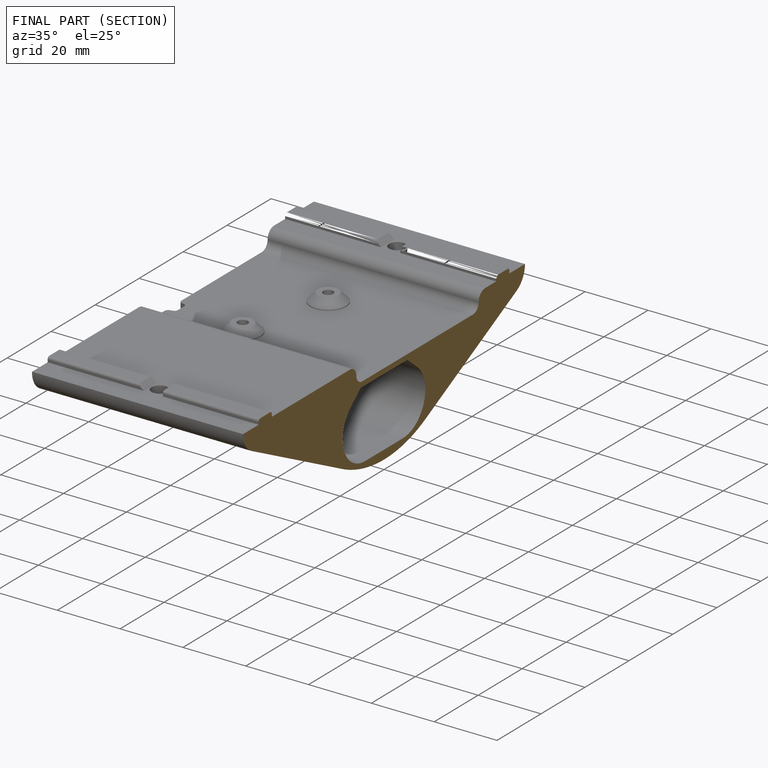
[diagram: finished part — half-section view (interior)]
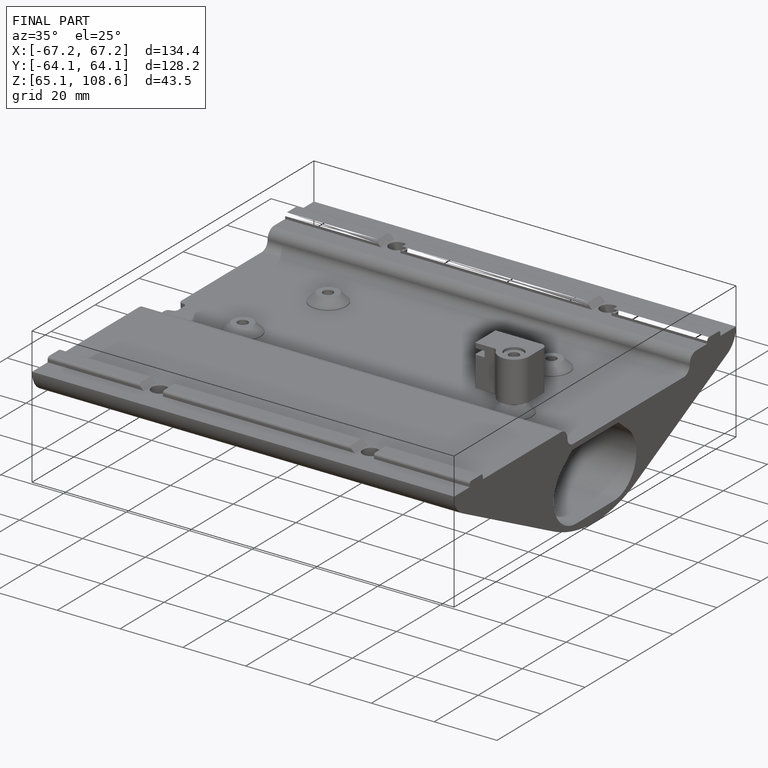
[diagram: finished part — iso view with bounding-box wireframe]
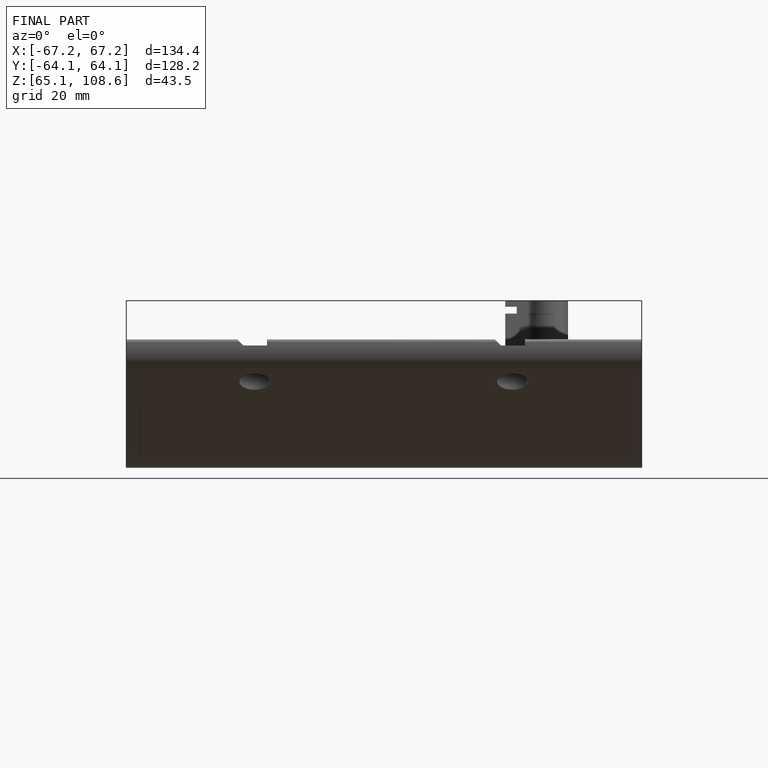
[diagram: finished part — front view with bounding-box wireframe]
